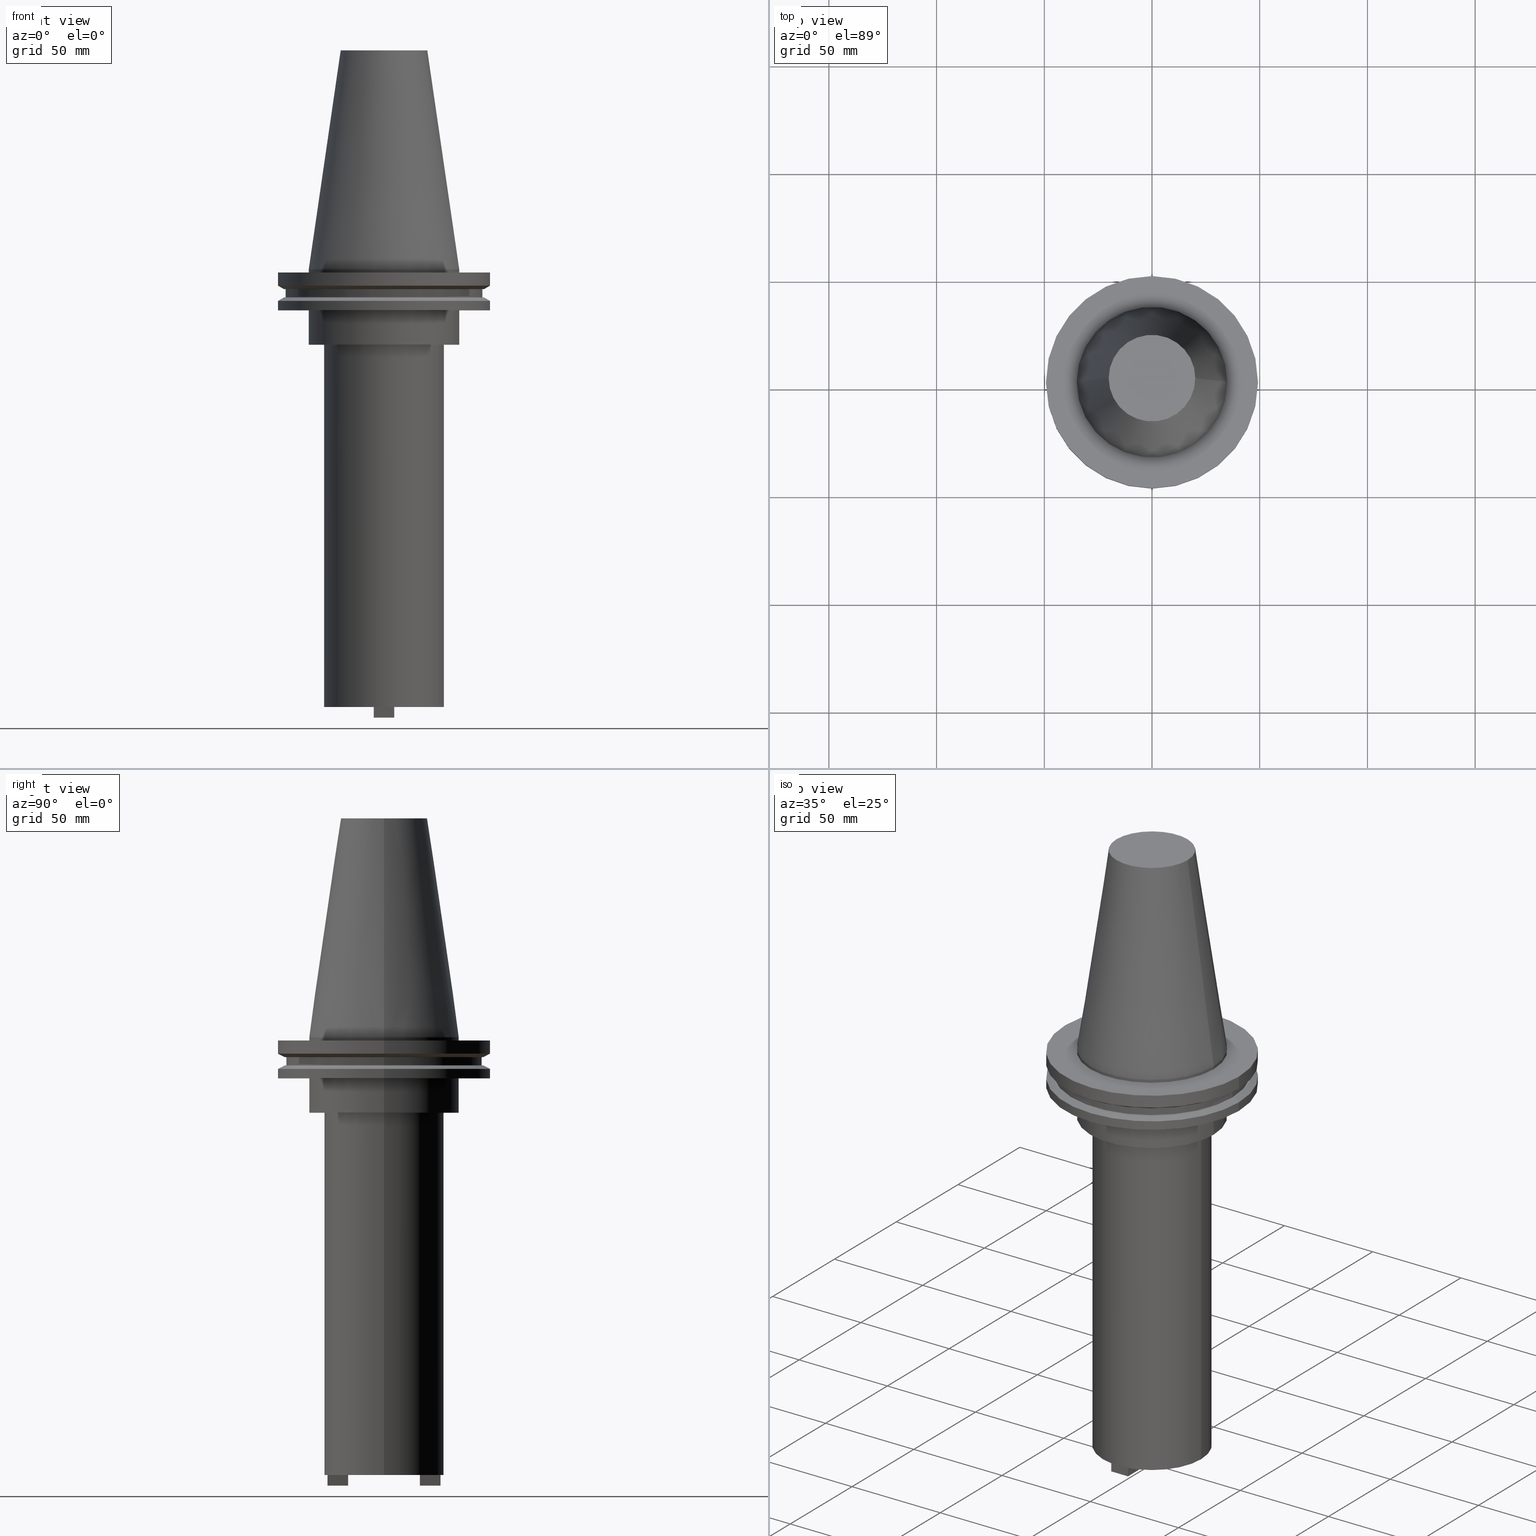
[diagram: canonical four-view strip — front | top / right | iso, engineering-drawing reading convention]
A machine part, canonical four-view strip (front | top / right | iso — engineering-drawing reading convention). The complete STEP part file that produces these views, byte-faithful:
ISO-10303-21;
HEADER;
FILE_DESCRIPTION (( 'STEP AP203' ),
    '1' );
FILE_NAME ('BCV50-SMC1_000-8.stp',
    '2022-03-03T19:54:37',
    ( '' ),
    ( '' ),
    'SwSTEP 2.0',
    'SolidWorks 2021',
    '' );
FILE_SCHEMA (( 'CONFIG_CONTROL_DESIGN' ));
ENDSEC;

DATA;
#1 = CIRCLE ( 'NONE', #856, 34.92499999999999716 ) ;
#2 = LINE ( 'NONE', #570, #325 ) ;
#3 = CARTESIAN_POINT ( 'NONE',  ( -27.80030000000000001, 3.404554841033616429E-15, -203.1999999999999886 ) ) ;
#4 = ORIENTED_EDGE ( 'NONE', *, *, #984, .T. ) ;
#5 = FACE_BOUND ( 'NONE', #557, .T. ) ;
#6 = ADVANCED_FACE ( 'NONE', ( #1049 ), #706, .F. ) ;
#7 = CARTESIAN_POINT ( 'NONE',  ( -34.92499999999999005, 0.000000000000000000, 0.000000000000000000 ) ) ;
#8 = VECTOR ( 'NONE', #800, 1000.000000000000000 ) ;
#9 = CARTESIAN_POINT ( 'NONE',  ( 0.000000000000000000, 0.000000000000000000, 0.000000000000000000 ) ) ;
#10 = ORIENTED_EDGE ( 'NONE', *, *, #368, .T. ) ;
#11 = DIRECTION ( 'NONE',  ( 1.000000000000000000, 0.000000000000000000, 0.000000000000000000 ) ) ;
#12 = EDGE_CURVE ( 'NONE', #749, #692, #894, .T. ) ;
#13 = CARTESIAN_POINT ( 'NONE',  ( 4.762499999999986855, 16.68250000000001876, -208.0999999999999659 ) ) ;
#14 = CIRCLE ( 'NONE', #117, 49.21499999999998920 ) ;
#15 = ORIENTED_EDGE ( 'NONE', *, *, #979, .T. ) ;
#16 = CONICAL_SURFACE ( 'NONE', #291, 46.43919780457007818, 1.047197551196575205 ) ;
#17 = CIRCLE ( 'NONE', #563, 49.21500000000000341 ) ;
#18 = DATE_AND_TIME ( #684, #157 ) ;
#19 = EDGE_CURVE ( 'NONE', #466, #787, #958, .T. ) ;
#20 = LINE ( 'NONE', #423, #410 ) ;
#21 = ADVANCED_FACE ( 'NONE', ( #289 ), #638, .F. ) ;
#22 = ORIENTED_EDGE ( 'NONE', *, *, #368, .F. ) ;
#23 = PERSON_AND_ORGANIZATION_ROLE ( 'creator' ) ;
#24 = DIRECTION ( 'NONE',  ( 1.000000000000000000, 0.000000000000000000, 0.000000000000000000 ) ) ;
#25 = AXIS2_PLACEMENT_3D ( 'NONE', #679, #860, #1012 ) ;
#26 = ORIENTED_EDGE ( 'NONE', *, *, #418, .F. ) ;
#27 = ORIENTED_EDGE ( 'NONE', *, *, #67, .T. ) ;
#28 = DIRECTION ( 'NONE',  ( 0.000000000000000000, -0.000000000000000000, 1.000000000000000000 ) ) ;
#29 = CYLINDRICAL_SURFACE ( 'NONE', #25, 34.92499999999999716 ) ;
#30 = ORIENTED_EDGE ( 'NONE', *, *, #281, .F. ) ;
#31 = PERSON_AND_ORGANIZATION_ROLE ( 'design_owner' ) ;
#32 = CIRCLE ( 'NONE', #797, 34.92499999999999005 ) ;
#33 = ADVANCED_FACE ( 'NONE', ( #296 ), #465, .T. ) ;
#34 = DIRECTION ( 'NONE',  ( -1.000000000000000000, 3.642463991552348493E-16, 0.000000000000000000 ) ) ;
#35 = DIRECTION ( 'NONE',  ( 9.106159978880878627E-17, 1.000000000000000000, 0.000000000000000000 ) ) ;
#36 = ORIENTED_EDGE ( 'NONE', *, *, #337, .F. ) ;
#37 = PLANE ( 'NONE',  #725 ) ;
#38 = CARTESIAN_POINT ( 'NONE',  ( 34.92499999999999005, 4.277078946022130098E-15, 0.000000000000000000 ) ) ;
#39 = ORIENTED_EDGE ( 'NONE', *, *, #373, .F. ) ;
#40 = ORIENTED_EDGE ( 'NONE', *, *, #212, .F. ) ;
#41 = CARTESIAN_POINT ( 'NONE',  ( 27.80030000000000001, 0.000000000000000000, -35.04999999999999716 ) ) ;
#42 = CARTESIAN_POINT ( 'NONE',  ( 0.000000000000000000, 0.000000000000000000, -35.04999999999999716 ) ) ;
#43 = ORIENTED_EDGE ( 'NONE', *, *, #854, .F. ) ;
#44 = VERTEX_POINT ( 'NONE', #1060 ) ;
#45 = CIRCLE ( 'NONE', #343, 46.43919780457007818 ) ;
#46 = CARTESIAN_POINT ( 'NONE',  ( -34.92499999999999716, 4.277078946022130887E-15, 101.5999999999999943 ) ) ;
#47 = PLANE ( 'NONE',  #806 ) ;
#48 = DIRECTION ( 'NONE',  ( -3.642463991552351451E-16, -1.000000000000000000, 0.000000000000000000 ) ) ;
#49 = VERTEX_POINT ( 'NONE', #481 ) ;
#50 = DIRECTION ( 'NONE',  ( -0.000000000000000000, -0.000000000000000000, 1.000000000000000000 ) ) ;
#51 = PLANE ( 'NONE',  #872 ) ;
#52 = DIRECTION ( 'NONE',  ( -0.8660254037844169472, 0.000000000000000000, -0.5000000000000375255 ) ) ;
#53 = EDGE_CURVE ( 'NONE', #749, #531, #545, .T. ) ;
#54 = VERTEX_POINT ( 'NONE', #889 ) ;
#55 = FACE_BOUND ( 'NONE', #863, .T. ) ;
#56 = DIRECTION ( 'NONE',  ( -1.000000000000000000, 0.000000000000000000, 0.000000000000000000 ) ) ;
#57 = EDGE_LOOP ( 'NONE', ( #630, #848, #97, #231 ) ) ;
#58 = EDGE_LOOP ( 'NONE', ( #429, #633, #184, #717 ) ) ;
#59 = CARTESIAN_POINT ( 'NONE',  ( -4.762500000000018829, 16.68250000000002231, -203.1999999999999886 ) ) ;
#60 = AXIS2_PLACEMENT_3D ( 'NONE', #427, #693, #208 ) ;
#61 = CC_DESIGN_PERSON_AND_ORGANIZATION_ASSIGNMENT ( #191, #102, ( #923 ) ) ;
#62 = DIRECTION ( 'NONE',  ( -0.000000000000000000, -0.000000000000000000, 1.000000000000000000 ) ) ;
#63 = DIRECTION ( 'NONE',  ( -0.000000000000000000, -0.000000000000000000, 1.000000000000000000 ) ) ;
#64 = EDGE_LOOP ( 'NONE', ( #810, #304, #40, #297 ) ) ;
#65 = LINE ( 'NONE', #883, #921 ) ;
#66 = VECTOR ( 'NONE', #952, 1000.000000000000000 ) ;
#67 = EDGE_CURVE ( 'NONE', #660, #1074, #477, .T. ) ;
#68 = PRODUCT_RELATED_PRODUCT_CATEGORY ( 'detail', '', ( #918 ) ) ;
#69 = CARTESIAN_POINT ( 'NONE',  ( 0.000000000000000000, 0.000000000000000000, -35.04999999999999716 ) ) ;
#70 = CARTESIAN_POINT ( 'NONE',  ( -4.762500000000017053, -26.20750000000000668, -208.0999999999999659 ) ) ;
#71 = ORIENTED_EDGE ( 'NONE', *, *, #169, .T. ) ;
#72 = CARTESIAN_POINT ( 'NONE',  ( 0.000000000000000000, 0.000000000000000000, -19.04999999999999716 ) ) ;
#73 = CIRCLE ( 'NONE', #375, 34.92499999999999716 ) ;
#74 = FACE_OUTER_BOUND ( 'NONE', #1008, .T. ) ;
#75 = EDGE_CURVE ( 'NONE', #986, #242, #888, .T. ) ;
#76 = CARTESIAN_POINT ( 'NONE',  ( 0.000000000000000000, 0.000000000000000000, -14.65761014474876944 ) ) ;
#77 = EDGE_LOOP ( 'NONE', ( #267, #680, #733, #655 ) ) ;
#78 =( LENGTH_UNIT ( ) NAMED_UNIT ( * ) SI_UNIT ( .MILLI., .METRE. ) );
#79 = DIRECTION ( 'NONE',  ( -1.000000000000000000, 0.000000000000000000, 0.000000000000000000 ) ) ;
#80 = APPROVAL_PERSON_ORGANIZATION ( #539, #1019, #444 ) ;
#81 = CIRCLE ( 'NONE', #158, 5.754999999999994564 ) ;
#82 = DIRECTION ( 'NONE',  ( -1.000000000000000000, 0.000000000000000000, 0.000000000000000000 ) ) ;
#83 = ADVANCED_FACE ( 'NONE', ( #123 ), #1073, .T. ) ;
#84 = ORIENTED_EDGE ( 'NONE', *, *, #386, .T. ) ;
#85 = FACE_OUTER_BOUND ( 'NONE', #271, .T. ) ;
#86 = DIRECTION ( 'NONE',  ( 0.000000000000000000, 0.000000000000000000, -1.000000000000000000 ) ) ;
#87 = SHAPE_DEFINITION_REPRESENTATION ( #930, #796 ) ;
#88 = FACE_OUTER_BOUND ( 'NONE', #398, .T. ) ;
#89 = ORIENTED_EDGE ( 'NONE', *, *, #592, .F. ) ;
#90 = CARTESIAN_POINT ( 'NONE',  ( 0.000000000000000000, 45.64500000000000313, -13.05499999999999794 ) ) ;
#91 = ADVANCED_FACE ( 'NONE', ( #417 ), #153, .T. ) ;
#92 = FACE_OUTER_BOUND ( 'NONE', #702, .T. ) ;
#93 = CONICAL_SURFACE ( 'NONE', #1016, 49.21499999999998920, 1.047197551196554333 ) ;
#94 = DIRECTION ( 'NONE',  ( -0.000000000000000000, -0.000000000000000000, 1.000000000000000000 ) ) ;
#95 = ORIENTED_EDGE ( 'NONE', *, *, #587, .F. ) ;
#96 = CYLINDRICAL_SURFACE ( 'NONE', #306, 49.21499999999999631 ) ;
#97 = ORIENTED_EDGE ( 'NONE', *, *, #605, .T. ) ;
#98 = AXIS2_PLACEMENT_3D ( 'NONE', #534, #784, #846 ) ;
#99 = DIRECTION ( 'NONE',  ( 1.000000000000000000, 0.000000000000000000, 0.000000000000000000 ) ) ;
#100 = APPROVAL_PERSON_ORGANIZATION ( #195, #802, #496 ) ;
#101 = ORIENTED_EDGE ( 'NONE', *, *, #605, .F. ) ;
#102 = PERSON_AND_ORGANIZATION_ROLE ( 'creator' ) ;
#103 = AXIS2_PLACEMENT_3D ( 'NONE', #149, #284, #953 ) ;
#104 = ORIENTED_EDGE ( 'NONE', *, *, #947, .T. ) ;
#105 = DIRECTION ( 'NONE',  ( -0.000000000000000000, -0.000000000000000000, 1.000000000000000000 ) ) ;
#106 = ORIENTED_EDGE ( 'NONE', *, *, #203, .T. ) ;
#107 = DATE_TIME_ROLE ( 'classification_date' ) ;
#108 = ORIENTED_EDGE ( 'NONE', *, *, #885, .F. ) ;
#109 = EDGE_CURVE ( 'NONE', #190, #448, #915, .T. ) ;
#110 = DIRECTION ( 'NONE',  ( 1.000000000000000000, 0.000000000000000000, 0.000000000000000000 ) ) ;
#111 = EDGE_LOOP ( 'NONE', ( #964, #322, #246, #713 ) ) ;
#112 = ORIENTED_EDGE ( 'NONE', *, *, #126, .T. ) ;
#113 = FACE_BOUND ( 'NONE', #1020, .T. ) ;
#114 = DIRECTION ( 'NONE',  ( -0.000000000000000000, -0.000000000000000000, 1.000000000000000000 ) ) ;
#115 = EDGE_CURVE ( 'NONE', #445, #502, #17, .T. ) ;
#116 = ORIENTED_EDGE ( 'NONE', *, *, #523, .T. ) ;
#117 = AXIS2_PLACEMENT_3D ( 'NONE', #485, #646, #816 ) ;
#118 = CC_DESIGN_APPROVAL ( #700, ( #923 ) ) ;
#119 = AXIS2_PLACEMENT_3D ( 'NONE', #166, #245, #497 ) ;
#120 = DIRECTION ( 'NONE',  ( -0.000000000000000000, -0.000000000000000000, 1.000000000000000000 ) ) ;
#121 = AXIS2_PLACEMENT_3D ( 'NONE', #480, #903, #411 ) ;
#122 = LINE ( 'NONE', #875, #1050 ) ;
#123 = FACE_OUTER_BOUND ( 'NONE', #305, .T. ) ;
#124 = ORIENTED_EDGE ( 'NONE', *, *, #1061, .F. ) ;
#125 = LINE ( 'NONE', #255, #596 ) ;
#126 = EDGE_CURVE ( 'NONE', #351, #804, #81, .T. ) ;
#127 = DIRECTION ( 'NONE',  ( 0.000000000000000000, 0.000000000000000000, -1.000000000000000000 ) ) ;
#128 = DIRECTION ( 'NONE',  ( 1.000000000000000000, -3.642463991552351451E-16, 0.000000000000000000 ) ) ;
#129 = AXIS2_PLACEMENT_3D ( 'NONE', #602, #270, #110 ) ;
#130 = UNCERTAINTY_MEASURE_WITH_UNIT (LENGTH_MEASURE( 1.000000000000000082E-05 ), #78, 'distance_accuracy_value', 'NONE');
#131 = ORIENTED_EDGE ( 'NONE', *, *, #280, .T. ) ;
#132 = CARTESIAN_POINT ( 'NONE',  ( -4.762500000000017053, -26.20750000000000668, -208.0999999999999659 ) ) ;
#133 = EDGE_CURVE ( 'NONE', #173, #196, #526, .T. ) ;
#134 = CC_DESIGN_PERSON_AND_ORGANIZATION_ASSIGNMENT ( #604, #23, ( #1058 ) ) ;
#135 = CARTESIAN_POINT ( 'NONE',  ( -4.762500000000017941, 26.20750000000002089, -208.0999999999999659 ) ) ;
#136 = ORIENTED_EDGE ( 'NONE', *, *, #554, .F. ) ;
#137 = ORIENTED_EDGE ( 'NONE', *, *, #148, .T. ) ;
#138 = AXIS2_PLACEMENT_3D ( 'NONE', #218, #1056, #155 ) ;
#139 = LINE ( 'NONE', #651, #694 ) ;
#140 = SECURITY_CLASSIFICATION ( '', '', #268 ) ;
#141 = DIRECTION ( 'NONE',  ( 1.000000000000000000, 0.000000000000000000, 0.000000000000000000 ) ) ;
#142 = EDGE_CURVE ( 'NONE', #196, #173, #308, .T. ) ;
#143 = ORIENTED_EDGE ( 'NONE', *, *, #169, .F. ) ;
#144 = CIRCLE ( 'NONE', #121, 46.43919780457007818 ) ;
#145 = ORIENTED_EDGE ( 'NONE', *, *, #666, .F. ) ;
#146 = LINE ( 'NONE', #302, #222 ) ;
#147 = DIRECTION ( 'NONE',  ( -0.000000000000000000, -0.000000000000000000, 1.000000000000000000 ) ) ;
#148 = EDGE_CURVE ( 'NONE', #502, #445, #941, .T. ) ;
#149 = CARTESIAN_POINT ( 'NONE',  ( 0.000000000000000000, 0.000000000000000000, 101.5999999999999943 ) ) ;
#150 = EDGE_LOOP ( 'NONE', ( #1001, #594, #95, #493 ) ) ;
#151 = CARTESIAN_POINT ( 'NONE',  ( -5.754999999999994564, 7.047842329093010853E-16, -35.04999999999999716 ) ) ;
#152 = FACE_OUTER_BOUND ( 'NONE', #111, .T. ) ;
#153 = CYLINDRICAL_SURFACE ( 'NONE', #780, 49.21499999999998920 ) ;
#154 = VERTEX_POINT ( 'NONE', #825 ) ;
#155 = DIRECTION ( 'NONE',  ( 0.000000000000000000, -0.000000000000000000, 1.000000000000000000 ) ) ;
#156 = CIRCLE ( 'NONE', #432, 5.755000000000006111 ) ;
#157 = LOCAL_TIME ( 13, 54, 37.00000000000000000, #188 ) ;
#158 = AXIS2_PLACEMENT_3D ( 'NONE', #980, #743, #899 ) ;
#159 = LINE ( 'NONE', #401, #380 ) ;
#160 = VECTOR ( 'NONE', #721, 1000.000000000000000 ) ;
#161 = CARTESIAN_POINT ( 'NONE',  ( -45.64500000000000313, 5.589900314708094957E-15, -9.204999999999991189 ) ) ;
#162 = EDGE_LOOP ( 'NONE', ( #335, #116 ) ) ;
#163 = CARTESIAN_POINT ( 'NONE',  ( 46.43919780457007818, 0.000000000000000000, -9.204999999999991189 ) ) ;
#164 = EDGE_CURVE ( 'NONE', #945, #804, #1078, .T. ) ;
#165 = DIRECTION ( 'NONE',  ( -0.000000000000000000, -0.000000000000000000, 1.000000000000000000 ) ) ;
#166 = CARTESIAN_POINT ( 'NONE',  ( 0.000000000000000000, 0.000000000000000000, -14.65761014474876944 ) ) ;
#167 = ORIENTED_EDGE ( 'NONE', *, *, #148, .F. ) ;
#168 = DIRECTION ( 'NONE',  ( 1.000000000000000000, 0.000000000000000000, 0.000000000000000000 ) ) ;
#169 = EDGE_CURVE ( 'NONE', #697, #154, #1066, .T. ) ;
#170 = CARTESIAN_POINT ( 'NONE',  ( 0.000000000000000000, 0.000000000000000000, -19.04999999999999716 ) ) ;
#171 = EDGE_CURVE ( 'NONE', #1074, #787, #1085, .T. ) ;
#172 = DIRECTION ( 'NONE',  ( 1.000000000000000000, 0.000000000000000000, 0.000000000000000000 ) ) ;
#173 = VERTEX_POINT ( 'NONE', #329 ) ;
#174 = DIRECTION ( 'NONE',  ( 1.000000000000000000, -1.456985596620939003E-15, 0.000000000000000000 ) ) ;
#175 = CARTESIAN_POINT ( 'NONE',  ( 4.762499999999986855, 16.68250000000001876, -208.0999999999999659 ) ) ;
#176 = VECTOR ( 'NONE', #902, 1000.000000000000000 ) ;
#177 = CARTESIAN_POINT ( 'NONE',  ( -4.762500000000017053, -26.20750000000000668, -208.0999999999999659 ) ) ;
#178 = CLOSED_SHELL ( 'NONE', ( #710, #331, #785, #1003, #1057, #33, #691, #91, #320, #1034, #767, #672, #598, #751, #83, #395, #315, #248, #1087, #1048, #935, #1028, #536, #269, #525, #264, #355, #250, #392, #21, #6, #313, #895, #843, #1011, #256, #808, #358 ) ) ;
#179 = VERTEX_POINT ( 'NONE', #1086 ) ;
#180 = DIRECTION ( 'NONE',  ( -0.000000000000000000, -0.000000000000000000, 1.000000000000000000 ) ) ;
#181 = AXIS2_PLACEMENT_3D ( 'NONE', #219, #1077, #893 ) ;
#182 = DIRECTION ( 'NONE',  ( 1.000000000000000000, 0.000000000000000000, 0.000000000000000000 ) ) ;
#183 = DIRECTION ( 'NONE',  ( -1.000000000000000000, 1.821231995776175725E-16, 0.000000000000000000 ) ) ;
#184 = ORIENTED_EDGE ( 'NONE', *, *, #828, .F. ) ;
#185 = DIRECTION ( 'NONE',  ( -1.000000000000000000, 0.000000000000000000, 0.000000000000000000 ) ) ;
#186 = CARTESIAN_POINT ( 'NONE',  ( 0.000000000000000000, 0.000000000000000000, -35.04999999999999716 ) ) ;
#187 = ORIENTED_EDGE ( 'NONE', *, *, #142, .T. ) ;
#188 = COORDINATED_UNIVERSAL_TIME_OFFSET ( 6, 0, .BEHIND. ) ;
#189 = CYLINDRICAL_SURFACE ( 'NONE', #482, 5.754999999999994564 ) ;
#190 = VERTEX_POINT ( 'NONE', #177 ) ;
#191 = PERSON_AND_ORGANIZATION ( #654, #940 ) ;
#192 = EDGE_CURVE ( 'NONE', #44, #217, #402, .T. ) ;
#193 = CYLINDRICAL_SURFACE ( 'NONE', #129, 27.80030000000000001 ) ;
#194 = ORIENTED_EDGE ( 'NONE', *, *, #19, .T. ) ;
#195 = PERSON_AND_ORGANIZATION ( #654, #940 ) ;
#196 = VERTEX_POINT ( 'NONE', #3 ) ;
#197 = PLANE ( 'NONE',  #939 ) ;
#198 = DIRECTION ( 'NONE',  ( 1.000000000000000000, 0.000000000000000000, 0.000000000000000000 ) ) ;
#199 = EDGE_CURVE ( 'NONE', #639, #502, #492, .T. ) ;
#200 = ORIENTED_EDGE ( 'NONE', *, *, #900, .F. ) ;
#201 = APPROVAL_STATUS ( 'not_yet_approved' ) ;
#202 = CARTESIAN_POINT ( 'NONE',  ( -4.762500000000017053, -26.20750000000000668, -208.0999999999999659 ) ) ;
#203 = EDGE_CURVE ( 'NONE', #449, #54, #732, .T. ) ;
#204 = CARTESIAN_POINT ( 'NONE',  ( -4.762500000000019718, -16.68249999999999389, -208.0999999999999659 ) ) ;
#205 = CARTESIAN_POINT ( 'NONE',  ( 0.000000000000000000, 0.000000000000000000, -9.204999999999991189 ) ) ;
#206 = AXIS2_PLACEMENT_3D ( 'NONE', #132, #558, #1070 ) ;
#207 = LOCAL_TIME ( 13, 54, 37.00000000000000000, #278 ) ;
#208 = DIRECTION ( 'NONE',  ( 1.000000000000000000, 0.000000000000000000, 0.000000000000000000 ) ) ;
#209 = CARTESIAN_POINT ( 'NONE',  ( 34.92499999999999716, 0.000000000000000000, -35.04999999999999716 ) ) ;
#210 = VECTOR ( 'NONE', #458, 1000.000000000000000 ) ;
#211 = ORIENTED_EDGE ( 'NONE', *, *, #199, .T. ) ;
#212 = EDGE_CURVE ( 'NONE', #787, #1074, #1076, .T. ) ;
#213 = VERTEX_POINT ( 'NONE', #905 ) ;
#214 = CARTESIAN_POINT ( 'NONE',  ( -4.762500000000017941, 26.20750000000002089, -208.0999999999999659 ) ) ;
#215 = LINE ( 'NONE', #385, #66 ) ;
#216 = ORIENTED_EDGE ( 'NONE', *, *, #979, .F. ) ;
#217 = VERTEX_POINT ( 'NONE', #990 ) ;
#218 = CARTESIAN_POINT ( 'NONE',  ( 4.762499999999988631, -26.20750000000000668, -208.0999999999999659 ) ) ;
#219 = CARTESIAN_POINT ( 'NONE',  ( 0.000000000000000000, 0.000000000000000000, 0.000000000000000000 ) ) ;
#220 = ORIENTED_EDGE ( 'NONE', *, *, #523, .F. ) ;
#221 = ORIENTED_EDGE ( 'NONE', *, *, #109, .F. ) ;
#222 = VECTOR ( 'NONE', #475, 1000.000000000000000 ) ;
#223 = FACE_OUTER_BOUND ( 'NONE', #685, .T. ) ;
#224 = APPROVAL_PERSON_ORGANIZATION ( #770, #700, #1018 ) ;
#225 = CARTESIAN_POINT ( 'NONE',  ( 0.000000000000000000, 0.000000000000000000, 0.000000000000000000 ) ) ;
#226 = VERTEX_POINT ( 'NONE', #241 ) ;
#227 = EDGE_LOOP ( 'NONE', ( #850, #221, #907, #1013 ) ) ;
#228 = DIRECTION ( 'NONE',  ( -1.000000000000000000, 0.000000000000000000, 0.000000000000000000 ) ) ;
#229 = CARTESIAN_POINT ( 'NONE',  ( -46.43919780457007818, 5.857130358318727293E-15, -9.204999999999991189 ) ) ;
#230 = CARTESIAN_POINT ( 'NONE',  ( -46.43919780457007818, 5.687161494633754392E-15, -9.204999999999991189 ) ) ;
#231 = ORIENTED_EDGE ( 'NONE', *, *, #647, .T. ) ;
#232 = PLANE ( 'NONE',  #853 ) ;
#233 = AXIS2_PLACEMENT_3D ( 'NONE', #9, #851, #99 ) ;
#234 = LINE ( 'NONE', #576, #1029 ) ;
#235 = DIRECTION ( 'NONE',  ( 1.000000000000000000, 0.000000000000000000, 0.000000000000000000 ) ) ;
#236 = VERTEX_POINT ( 'NONE', #832 ) ;
#237 = DIRECTION ( 'NONE',  ( 1.000000000000000000, 0.000000000000000000, 0.000000000000000000 ) ) ;
#238 = VECTOR ( 'NONE', #553, 1000.000000000000000 ) ;
#239 = VECTOR ( 'NONE', #1002, 1000.000000000000000 ) ;
#240 = CARTESIAN_POINT ( 'NONE',  ( 4.762499999999981526, 26.20750000000001734, -203.1999999999999886 ) ) ;
#241 = CARTESIAN_POINT ( 'NONE',  ( -4.762500000000019718, -16.68249999999999034, -203.1999999999999886 ) ) ;
#242 = VERTEX_POINT ( 'NONE', #161 ) ;
#243 = LINE ( 'NONE', #516, #778 ) ;
#244 = LINE ( 'NONE', #829, #332 ) ;
#245 = DIRECTION ( 'NONE',  ( -0.000000000000000000, -0.000000000000000000, 1.000000000000000000 ) ) ;
#246 = ORIENTED_EDGE ( 'NONE', *, *, #12, .T. ) ;
#247 = DIRECTION ( 'NONE',  ( -1.000000000000000000, 0.000000000000000000, -0.000000000000000000 ) ) ;
#248 = ADVANCED_FACE ( 'NONE', ( #397 ), #93, .T. ) ;
#249 = AXIS2_PLACEMENT_3D ( 'NONE', #642, #463, #555 ) ;
#250 = ADVANCED_FACE ( 'NONE', ( #1068 ), #649, .F. ) ;
#251 = CARTESIAN_POINT ( 'NONE',  ( 4.762499999999986855, 16.68250000000001876, -208.0999999999999659 ) ) ;
#252 = DIRECTION ( 'NONE',  ( -0.000000000000000000, -0.000000000000000000, 1.000000000000000000 ) ) ;
#253 = EDGE_LOOP ( 'NONE', ( #634, #43, #101, #131 ) ) ;
#254 = DIRECTION ( 'NONE',  ( -0.000000000000000000, -0.000000000000000000, 1.000000000000000000 ) ) ;
#255 = CARTESIAN_POINT ( 'NONE',  ( 4.762499999999986855, 16.68250000000001876, -203.1999999999999886 ) ) ;
#256 = ADVANCED_FACE ( 'NONE', ( #1021 ), #696, .F. ) ;
#257 = FACE_OUTER_BOUND ( 'NONE', #579, .T. ) ;
#258 = CC_DESIGN_DATE_AND_TIME_ASSIGNMENT ( #18, #532, ( #1058 ) ) ;
#259 = EDGE_LOOP ( 'NONE', ( #556, #759 ) ) ;
#260 = DIRECTION ( 'NONE',  ( -0.000000000000000000, -0.000000000000000000, 1.000000000000000000 ) ) ;
#261 = COORDINATED_UNIVERSAL_TIME_OFFSET ( 6, 0, .BEHIND. ) ;
#262 = EDGE_CURVE ( 'NONE', #179, #712, #441, .T. ) ;
#263 = DIRECTION ( 'NONE',  ( -1.000000000000000000, 0.000000000000000000, -0.000000000000000000 ) ) ;
#264 = ADVANCED_FACE ( 'NONE', ( #257 ), #942, .T. ) ;
#265 = ORIENTED_EDGE ( 'NONE', *, *, #774, .F. ) ;
#266 = DIRECTION ( 'NONE',  ( -1.821231995776175725E-16, -1.000000000000000000, 0.000000000000000000 ) ) ;
#267 = ORIENTED_EDGE ( 'NONE', *, *, #742, .T. ) ;
#268 = SECURITY_CLASSIFICATION_LEVEL ( 'unclassified' ) ;
#269 = ADVANCED_FACE ( 'NONE', ( #599, #674 ), #758, .F. ) ;
#270 = DIRECTION ( 'NONE',  ( -0.000000000000000000, -0.000000000000000000, 1.000000000000000000 ) ) ;
#271 = EDGE_LOOP ( 'NONE', ( #670, #211, #552, #330 ) ) ;
#272 =( NAMED_UNIT ( * ) SI_UNIT ( $, .STERADIAN. ) SOLID_ANGLE_UNIT ( ) );
#273 = ORIENTED_EDGE ( 'NONE', *, *, #900, .T. ) ;
#274 = DIRECTION ( 'NONE',  ( 1.000000000000000000, 0.000000000000000000, 0.000000000000000000 ) ) ;
#275 = EDGE_CURVE ( 'NONE', #794, #922, #436, .T. ) ;
#276 = CARTESIAN_POINT ( 'NONE',  ( 5.754999999999994564, 0.000000000000000000, -35.04999999999999716 ) ) ;
#277 = ORIENTED_EDGE ( 'NONE', *, *, #641, .T. ) ;
#278 = COORDINATED_UNIVERSAL_TIME_OFFSET ( 6, 0, .BEHIND. ) ;
#279 = CYLINDRICAL_SURFACE ( 'NONE', #470, 34.92499999999999005 ) ;
#280 = EDGE_CURVE ( 'NONE', #937, #213, #20, .T. ) ;
#281 = EDGE_CURVE ( 'NONE', #901, #449, #73, .T. ) ;
#282 = DIRECTION ( 'NONE',  ( 1.000000000000000000, 0.000000000000000000, 0.000000000000000000 ) ) ;
#283 = VECTOR ( 'NONE', #469, 1000.000000000000114 ) ;
#284 = DIRECTION ( 'NONE',  ( -0.000000000000000000, -0.000000000000000000, 1.000000000000000000 ) ) ;
#285 = ORIENTED_EDGE ( 'NONE', *, *, #641, .F. ) ;
#286 = DIRECTION ( 'NONE',  ( -1.000000000000000000, 0.000000000000000000, -0.000000000000000000 ) ) ;
#287 = DIRECTION ( 'NONE',  ( 1.000000000000000000, -9.106159978880878627E-17, 0.000000000000000000 ) ) ;
#288 = CONICAL_SURFACE ( 'NONE', #818, 34.92499999999999005, 0.1448138465474119452 ) ;
#289 = FACE_OUTER_BOUND ( 'NONE', #1031, .T. ) ;
#290 = CIRCLE ( 'NONE', #989, 46.43919780457007818 ) ;
#291 = AXIS2_PLACEMENT_3D ( 'NONE', #913, #601, #734 ) ;
#292 = AXIS2_PLACEMENT_3D ( 'NONE', #737, #748, #172 ) ;
#293 = ORIENTED_EDGE ( 'NONE', *, *, #892, .F. ) ;
#294 = CARTESIAN_POINT ( 'NONE',  ( -4.762500000000018829, 16.68250000000002231, -208.0999999999999659 ) ) ;
#295 = DIRECTION ( 'NONE',  ( 1.000000000000000000, -3.642463991552351451E-16, -0.000000000000000000 ) ) ;
#296 = FACE_OUTER_BOUND ( 'NONE', #611, .T. ) ;
#297 = ORIENTED_EDGE ( 'NONE', *, *, #19, .F. ) ;
#298 = LINE ( 'NONE', #565, #176 ) ;
#299 = DIRECTION ( 'NONE',  ( -1.821231995776175725E-16, -1.000000000000000000, -0.000000000000000000 ) ) ;
#300 = ORIENTED_EDGE ( 'NONE', *, *, #203, .F. ) ;
#301 = ORIENTED_EDGE ( 'NONE', *, *, #262, .T. ) ;
#302 = CARTESIAN_POINT ( 'NONE',  ( 27.80030000000000001, 0.000000000000000000, 0.000000000000000000 ) ) ;
#303 = CARTESIAN_POINT ( 'NONE',  ( -45.64500000000000313, 5.589900314708094957E-15, -13.05499999999999794 ) ) ;
#304 = ORIENTED_EDGE ( 'NONE', *, *, #405, .T. ) ;
#305 = EDGE_LOOP ( 'NONE', ( #293, #826, #106, #220 ) ) ;
#306 = AXIS2_PLACEMENT_3D ( 'NONE', #1080, #180, #908 ) ;
#307 = DIRECTION ( 'NONE',  ( -2.731847993664259274E-16, 1.000000000000000000, 0.000000000000000000 ) ) ;
#308 = CIRCLE ( 'NONE', #801, 27.80030000000000001 ) ;
#309 = FACE_OUTER_BOUND ( 'NONE', #738, .T. ) ;
#310 = DIRECTION ( 'NONE',  ( -0.000000000000000000, -0.000000000000000000, 1.000000000000000000 ) ) ;
#311 = ORIENTED_EDGE ( 'NONE', *, *, #688, .F. ) ;
#312 = DIRECTION ( 'NONE',  ( -0.000000000000000000, -0.000000000000000000, 1.000000000000000000 ) ) ;
#313 = ADVANCED_FACE ( 'NONE', ( #514 ), #610, .F. ) ;
#314 = CARTESIAN_POINT ( 'NONE',  ( 0.000000000000000000, 0.000000000000000000, -35.04999999999999716 ) ) ;
#315 = ADVANCED_FACE ( 'NONE', ( #88 ), #350, .T. ) ;
#316 = CARTESIAN_POINT ( 'NONE',  ( 34.92499999999999716, 0.000000000000000000, 101.5999999999999943 ) ) ;
#317 = ORIENTED_EDGE ( 'NONE', *, *, #462, .F. ) ;
#318 = CARTESIAN_POINT ( 'NONE',  ( 0.000000000000000000, 0.000000000000000000, -35.04999999999999716 ) ) ;
#319 = CARTESIAN_POINT ( 'NONE',  ( 4.762499999999988631, -26.20750000000000668, -208.0999999999999659 ) ) ;
#320 = ADVANCED_FACE ( 'NONE', ( #428 ), #29, .T. ) ;
#321 = DIRECTION ( 'NONE',  ( 1.000000000000000000, 0.000000000000000000, 0.000000000000000000 ) ) ;
#322 = ORIENTED_EDGE ( 'NONE', *, *, #53, .F. ) ;
#323 = CARTESIAN_POINT ( 'NONE',  ( 46.43919780457007818, 0.000000000000000000, -9.204999999999991189 ) ) ;
#324 = CC_DESIGN_PERSON_AND_ORGANIZATION_ASSIGNMENT ( #862, #31, ( #918 ) ) ;
#325 = VECTOR ( 'NONE', #731, 1000.000000000000000 ) ;
#326 = AXIS2_PLACEMENT_3D ( 'NONE', #90, #993, #247 ) ;
#327 = VECTOR ( 'NONE', #471, 999.9999999999998863 ) ;
#328 = CARTESIAN_POINT ( 'NONE',  ( 0.000000000000000000, 0.000000000000000000, 101.5999999999999943 ) ) ;
#329 = CARTESIAN_POINT ( 'NONE',  ( 27.80030000000000001, 0.000000000000000000, -203.1999999999999886 ) ) ;
#330 = ORIENTED_EDGE ( 'NONE', *, *, #1064, .F. ) ;
#331 = ADVANCED_FACE ( 'NONE', ( #1030 ), #193, .T. ) ;
#332 = VECTOR ( 'NONE', #79, 1000.000000000000000 ) ;
#333 = DIRECTION ( 'NONE',  ( 1.000000000000000000, 0.000000000000000000, 0.000000000000000000 ) ) ;
#334 = DIRECTION ( 'NONE',  ( -0.000000000000000000, -0.000000000000000000, 1.000000000000000000 ) ) ;
#335 = ORIENTED_EDGE ( 'NONE', *, *, #1015, .T. ) ;
#336 = FACE_OUTER_BOUND ( 'NONE', #809, .T. ) ;
#337 = EDGE_CURVE ( 'NONE', #531, #749, #686, .T. ) ;
#338 = AXIS2_PLACEMENT_3D ( 'NONE', #13, #773, #931 ) ;
#339 = DIRECTION ( 'NONE',  ( -0.000000000000000000, -0.000000000000000000, 1.000000000000000000 ) ) ;
#340 = DIRECTION ( 'NONE',  ( 6.374311985216615162E-16, -1.000000000000000000, 0.000000000000000000 ) ) ;
#341 = EDGE_LOOP ( 'NONE', ( #1026, #949, #277, #200 ) ) ;
#342 = DIRECTION ( 'NONE',  ( -0.000000000000000000, -0.000000000000000000, 1.000000000000000000 ) ) ;
#343 = AXIS2_PLACEMENT_3D ( 'NONE', #479, #897, #723 ) ;
#344 = CIRCLE ( 'NONE', #580, 45.64500000000000313 ) ;
#345 = CARTESIAN_POINT ( 'NONE',  ( 0.000000000000000000, 0.000000000000000000, 101.5999999999999801 ) ) ;
#346 = ORIENTED_EDGE ( 'NONE', *, *, #164, .T. ) ;
#347 = APPROVAL_STATUS ( 'not_yet_approved' ) ;
#348 = CIRCLE ( 'NONE', #440, 49.21499999999999631 ) ;
#349 = EDGE_CURVE ( 'NONE', #1051, #639, #637, .T. ) ;
#350 = CYLINDRICAL_SURFACE ( 'NONE', #518, 49.21499999999998920 ) ;
#351 = VERTEX_POINT ( 'NONE', #276 ) ;
#352 = CALENDAR_DATE ( 2022, 3, 3 ) ;
#353 = ORIENTED_EDGE ( 'NONE', *, *, #483, .F. ) ;
#354 = DIRECTION ( 'NONE',  ( 0.000000000000000000, 0.000000000000000000, -1.000000000000000000 ) ) ;
#355 = ADVANCED_FACE ( 'NONE', ( #936 ), #189, .F. ) ;
#356 = ORIENTED_EDGE ( 'NONE', *, *, #192, .T. ) ;
#357 = MECHANICAL_CONTEXT ( 'NONE', #1081, 'mechanical' ) ;
#358 = ADVANCED_FACE ( 'NONE', ( #768 ), #887, .F. ) ;
#359 = EDGE_CURVE ( 'NONE', #712, #794, #807, .T. ) ;
#360 = ORIENTED_EDGE ( 'NONE', *, *, #866, .F. ) ;
#361 = PLANE ( 'NONE',  #98 ) ;
#362 = CONICAL_SURFACE ( 'NONE', #884, 49.21499999999998920, 1.047197551196554333 ) ;
#363 = CARTESIAN_POINT ( 'NONE',  ( 4.762499999999981526, 26.20750000000001734, -208.0999999999999659 ) ) ;
#364 = LOCAL_TIME ( 13, 54, 37.00000000000000000, #619 ) ;
#365 = ORIENTED_EDGE ( 'NONE', *, *, #998, .T. ) ;
#366 = AXIS2_PLACEMENT_3D ( 'NONE', #1054, #644, #1040 ) ;
#367 = DIRECTION ( 'NONE',  ( -0.000000000000000000, -0.000000000000000000, 1.000000000000000000 ) ) ;
#368 = EDGE_CURVE ( 'NONE', #793, #650, #622, .T. ) ;
#369 = CARTESIAN_POINT ( 'NONE',  ( 4.762499999999988631, -26.20750000000000668, -208.0999999999999659 ) ) ;
#370 = ORIENTED_EDGE ( 'NONE', *, *, #507, .F. ) ;
#371 = ORIENTED_EDGE ( 'NONE', *, *, #730, .T. ) ;
#372 = CARTESIAN_POINT ( 'NONE',  ( 4.762499999999981526, 26.20750000000001734, -208.0999999999999659 ) ) ;
#373 = EDGE_CURVE ( 'NONE', #538, #787, #957, .T. ) ;
#374 = DIRECTION ( 'NONE',  ( 1.000000000000000000, 0.000000000000000000, 0.000000000000000000 ) ) ;
#375 = AXIS2_PLACEMENT_3D ( 'NONE', #186, #927, #617 ) ;
#376 = ORIENTED_EDGE ( 'NONE', *, *, #133, .F. ) ;
#377 = ORIENTED_EDGE ( 'NONE', *, *, #75, .F. ) ;
#378 = CARTESIAN_POINT ( 'NONE',  ( 45.64500000000000313, 0.000000000000000000, 101.5999999999999943 ) ) ;
#379 = DIRECTION ( 'NONE',  ( 0.000000000000000000, -0.000000000000000000, 1.000000000000000000 ) ) ;
#380 = VECTOR ( 'NONE', #668, 1000.000000000000000 ) ;
#381 = ORIENTED_EDGE ( 'NONE', *, *, #736, .F. ) ;
#382 = VECTOR ( 'NONE', #310, 1000.000000000000000 ) ;
#383 = ORIENTED_EDGE ( 'NONE', *, *, #667, .T. ) ;
#384 = DIRECTION ( 'NONE',  ( 0.000000000000000000, 0.000000000000000000, -1.000000000000000000 ) ) ;
#385 = CARTESIAN_POINT ( 'NONE',  ( -4.762500000000017941, 26.20750000000002089, -203.1999999999999886 ) ) ;
#386 = EDGE_CURVE ( 'NONE', #1017, #692, #977, .T. ) ;
#387 = DIRECTION ( 'NONE',  ( -0.000000000000000000, -0.000000000000000000, 1.000000000000000000 ) ) ;
#388 = ORIENTED_EDGE ( 'NONE', *, *, #984, .F. ) ;
#389 = CARTESIAN_POINT ( 'NONE',  ( -34.92499999999999716, 4.277078946022130887E-15, -35.04999999999999716 ) ) ;
#390 = DIRECTION ( 'NONE',  ( -0.000000000000000000, -0.000000000000000000, 1.000000000000000000 ) ) ;
#391 = CARTESIAN_POINT ( 'NONE',  ( 49.21499999999998920, 0.000000000000000000, 101.5999999999999943 ) ) ;
#392 = ADVANCED_FACE ( 'NONE', ( #720 ), #51, .F. ) ;
#393 = ORIENTED_EDGE ( 'NONE', *, *, #1064, .T. ) ;
#394 = DIRECTION ( 'NONE',  ( 0.000000000000000000, -0.000000000000000000, 1.000000000000000000 ) ) ;
#395 = ADVANCED_FACE ( 'NONE', ( #781, #623 ), #47, .F. ) ;
#396 = LINE ( 'NONE', #319, #489 ) ;
#397 = FACE_OUTER_BOUND ( 'NONE', #689, .T. ) ;
#398 = EDGE_LOOP ( 'NONE', ( #1088, #820, #194, #603 ) ) ;
#399 = CIRCLE ( 'NONE', #60, 45.64500000000000313 ) ;
#400 = LINE ( 'NONE', #214, #541 ) ;
#401 = CARTESIAN_POINT ( 'NONE',  ( -4.762500000000019718, -16.68249999999999389, -208.0999999999999659 ) ) ;
#402 = LINE ( 'NONE', #593, #1009 ) ;
#403 = ORIENTED_EDGE ( 'NONE', *, *, #621, .F. ) ;
#404 = DIRECTION ( 'NONE',  ( -0.000000000000000000, -0.000000000000000000, 1.000000000000000000 ) ) ;
#405 = EDGE_CURVE ( 'NONE', #236, #1074, #967, .T. ) ;
#406 = DIRECTION ( 'NONE',  ( 0.000000000000000000, 0.000000000000000000, -1.000000000000000000 ) ) ;
#407 = DIRECTION ( 'NONE',  ( 1.000000000000000000, 0.000000000000000000, 0.000000000000000000 ) ) ;
#408 = ORIENTED_EDGE ( 'NONE', *, *, #828, .T. ) ;
#409 = CARTESIAN_POINT ( 'NONE',  ( 0.000000000000000000, 0.000000000000000000, -13.05499999999999794 ) ) ;
#410 = VECTOR ( 'NONE', #753, 1000.000000000000000 ) ;
#411 = DIRECTION ( 'NONE',  ( 1.000000000000000000, 0.000000000000000000, 0.000000000000000000 ) ) ;
#412 = CARTESIAN_POINT ( 'NONE',  ( 0.000000000000000000, 0.000000000000000000, 101.5999999999999943 ) ) ;
#413 = EDGE_LOOP ( 'NONE', ( #376, #943 ) ) ;
#414 = DIRECTION ( 'NONE',  ( 1.000000000000000000, 0.000000000000000000, 0.000000000000000000 ) ) ;
#415 = AXIS2_PLACEMENT_3D ( 'NONE', #1027, #339, #182 ) ;
#416 = DIRECTION ( 'NONE',  ( 0.000000000000000000, 0.000000000000000000, -1.000000000000000000 ) ) ;
#417 = FACE_OUTER_BOUND ( 'NONE', #64, .T. ) ;
#418 = EDGE_CURVE ( 'NONE', #562, #692, #1059, .T. ) ;
#419 = ORIENTED_EDGE ( 'NONE', *, *, #790, .F. ) ;
#420 = CARTESIAN_POINT ( 'NONE',  ( -49.21499999999998920, 6.027099222003697037E-15, -14.65761014474876944 ) ) ;
#421 = CARTESIAN_POINT ( 'NONE',  ( 0.000000000000000000, 20.10819343178871321, 101.5999999999999943 ) ) ;
#422 = DATE_AND_TIME ( #830, #762 ) ;
#423 = CARTESIAN_POINT ( 'NONE',  ( 4.762499999999990408, -16.68250000000000810, -208.0999999999999659 ) ) ;
#424 = EDGE_LOOP ( 'NONE', ( #124, #30 ) ) ;
#425 = CARTESIAN_POINT ( 'NONE',  ( 0.000000000000000000, 0.000000000000000000, 101.5999999999999943 ) ) ;
#426 = AXIS2_PLACEMENT_3D ( 'NONE', #687, #520, #847 ) ;
#427 = CARTESIAN_POINT ( 'NONE',  ( 0.000000000000000000, 0.000000000000000000, -13.05499999999999794 ) ) ;
#428 = FACE_OUTER_BOUND ( 'NONE', #912, .T. ) ;
#429 = ORIENTED_EDGE ( 'NONE', *, *, #455, .T. ) ;
#430 = APPLICATION_PROTOCOL_DEFINITION ( 'international standard', 'config_control_design', 1994, #1081 ) ;
#431 = ORIENTED_EDGE ( 'NONE', *, *, #1015, .F. ) ;
#432 = AXIS2_PLACEMENT_3D ( 'NONE', #987, #503, #924 ) ;
#433 = AXIS2_PLACEMENT_3D ( 'NONE', #318, #656, #237 ) ;
#434 = AXIS2_PLACEMENT_3D ( 'NONE', #746, #929, #185 ) ;
#435 = AXIS2_PLACEMENT_3D ( 'NONE', #1000, #658, #321 ) ;
#436 = LINE ( 'NONE', #530, #464 ) ;
#437 = VERTEX_POINT ( 'NONE', #303 ) ;
#438 = PERSON_AND_ORGANIZATION ( #654, #940 ) ;
#439 = VERTEX_POINT ( 'NONE', #204 ) ;
#440 = AXIS2_PLACEMENT_3D ( 'NONE', #1035, #636, #282 ) ;
#441 = LINE ( 'NONE', #363, #535 ) ;
#442 = EDGE_CURVE ( 'NONE', #439, #937, #550, .T. ) ;
#443 = ORIENTED_EDGE ( 'NONE', *, *, #616, .T. ) ;
#444 = APPROVAL_ROLE ( '' ) ;
#445 = VERTEX_POINT ( 'NONE', #865 ) ;
#446 = DIRECTION ( 'NONE',  ( 1.000000000000000000, 0.000000000000000000, 0.000000000000000000 ) ) ;
#447 = EDGE_CURVE ( 'NONE', #44, #179, #973, .T. ) ;
#448 = VERTEX_POINT ( 'NONE', #961 ) ;
#449 = VERTEX_POINT ( 'NONE', #209 ) ;
#450 = LINE ( 'NONE', #251, #1007 ) ;
#451 = AXIS2_PLACEMENT_3D ( 'NONE', #69, #406, #500 ) ;
#452 = CARTESIAN_POINT ( 'NONE',  ( 4.762499999999988631, -26.20750000000001023, -203.1999999999999886 ) ) ;
#453 = VERTEX_POINT ( 'NONE', #369 ) ;
#454 = DATE_AND_TIME ( #352, #207 ) ;
#455 = EDGE_CURVE ( 'NONE', #922, #217, #215, .T. ) ;
#456 = DIRECTION ( 'NONE',  ( -0.000000000000000000, -0.000000000000000000, 1.000000000000000000 ) ) ;
#457 = VECTOR ( 'NONE', #542, 1000.000000000000000 ) ;
#458 = DIRECTION ( 'NONE',  ( 1.000000000000000000, -1.456985596620939003E-15, -0.000000000000000000 ) ) ;
#459 = VERTEX_POINT ( 'NONE', #452 ) ;
#460 = ORIENTED_EDGE ( 'NONE', *, *, #559, .F. ) ;
#461 = FACE_OUTER_BOUND ( 'NONE', #528, .T. ) ;
#462 = EDGE_CURVE ( 'NONE', #226, #213, #880, .T. ) ;
#463 = DIRECTION ( 'NONE',  ( 0.000000000000000000, 0.000000000000000000, 1.000000000000000000 ) ) ;
#464 = VECTOR ( 'NONE', #763, 1000.000000000000000 ) ;
#465 = CYLINDRICAL_SURFACE ( 'NONE', #103, 45.64500000000000313 ) ;
#466 = VERTEX_POINT ( 'NONE', #716 ) ;
#467 = DIRECTION ( 'NONE',  ( -0.000000000000000000, -0.000000000000000000, 1.000000000000000000 ) ) ;
#468 = EDGE_CURVE ( 'NONE', #531, #1017, #1053, .T. ) ;
#469 = DIRECTION ( 'NONE',  ( 0.8660254037844169472, 1.060575238724880168E-16, -0.5000000000000375255 ) ) ;
#470 = AXIS2_PLACEMENT_3D ( 'NONE', #620, #709, #868 ) ;
#471 = DIRECTION ( 'NONE',  ( -0.1443082272672999988, 0.000000000000000000, -0.9895327864921755756 ) ) ;
#472 = CONICAL_SURFACE ( 'NONE', #434, 34.92499999999999005, 0.1448138465474119452 ) ;
#473 = VECTOR ( 'NONE', #52, 1000.000000000000114 ) ;
#474 = ORIENTED_EDGE ( 'NONE', *, *, #53, .T. ) ;
#475 = DIRECTION ( 'NONE',  ( -0.000000000000000000, -0.000000000000000000, 1.000000000000000000 ) ) ;
#476 = CARTESIAN_POINT ( 'NONE',  ( 49.21499999999998920, 6.027099222003697037E-15, -14.65761014474876944 ) ) ;
#477 = LINE ( 'NONE', #814, #473 ) ;
#478 = ORIENTED_EDGE ( 'NONE', *, *, #776, .F. ) ;
#479 = CARTESIAN_POINT ( 'NONE',  ( 0.000000000000000000, 0.000000000000000000, -13.05499999999999794 ) ) ;
#480 = CARTESIAN_POINT ( 'NONE',  ( 0.000000000000000000, 0.000000000000000000, -9.204999999999991189 ) ) ;
#481 = CARTESIAN_POINT ( 'NONE',  ( -34.92499999999999716, 4.277078946022130887E-15, -19.04999999999999716 ) ) ;
#482 = AXIS2_PLACEMENT_3D ( 'NONE', #527, #105, #24 ) ;
#483 = EDGE_CURVE ( 'NONE', #154, #697, #348, .T. ) ;
#484 = ORIENTED_EDGE ( 'NONE', *, *, #736, .T. ) ;
#485 = CARTESIAN_POINT ( 'NONE',  ( 0.000000000000000000, 0.000000000000000000, -19.04999999999999716 ) ) ;
#486 = DIRECTION ( 'NONE',  ( 1.000000000000000000, 0.000000000000000000, 0.000000000000000000 ) ) ;
#487 = DIRECTION ( 'NONE',  ( 1.000000000000000000, 0.000000000000000000, 0.000000000000000000 ) ) ;
#488 = ORIENTED_EDGE ( 'NONE', *, *, #688, .T. ) ;
#489 = VECTOR ( 'NONE', #657, 1000.000000000000000 ) ;
#490 = PLANE ( 'NONE',  #206 ) ;
#491 = CYLINDRICAL_SURFACE ( 'NONE', #615, 49.21499999999999631 ) ;
#492 = LINE ( 'NONE', #230, #1046 ) ;
#493 = ORIENTED_EDGE ( 'NONE', *, *, #836, .F. ) ;
#494 = CARTESIAN_POINT ( 'NONE',  ( 4.762499999999990408, -16.68250000000000810, -208.0999999999999659 ) ) ;
#495 = CARTESIAN_POINT ( 'NONE',  ( 0.000000000000000000, 0.000000000000000000, -1.499999999999987566 ) ) ;
#496 = APPROVAL_ROLE ( '' ) ;
#497 = DIRECTION ( 'NONE',  ( 1.000000000000000000, 0.000000000000000000, 0.000000000000000000 ) ) ;
#498 = EDGE_LOOP ( 'NONE', ( #708, #419, #775, #112 ) ) ;
#499 = AXIS2_PLACEMENT_3D ( 'NONE', #537, #354, #263 ) ;
#500 = DIRECTION ( 'NONE',  ( 1.000000000000000000, 0.000000000000000000, 0.000000000000000000 ) ) ;
#501 = CARTESIAN_POINT ( 'NONE',  ( -5.754999999999994564, 7.047842329093010853E-16, 0.000000000000000000 ) ) ;
#502 = VERTEX_POINT ( 'NONE', #786 ) ;
#503 = DIRECTION ( 'NONE',  ( -0.000000000000000000, -0.000000000000000000, 1.000000000000000000 ) ) ;
#504 = CIRCLE ( 'NONE', #677, 5.755000000000006111 ) ;
#505 = AXIS2_PLACEMENT_3D ( 'NONE', #842, #663, #577 ) ;
#506 = LINE ( 'NONE', #378, #659 ) ;
#507 = EDGE_CURVE ( 'NONE', #213, #459, #122, .T. ) ;
#508 = CIRCLE ( 'NONE', #740, 34.92499999999999005 ) ;
#509 = CARTESIAN_POINT ( 'NONE',  ( 0.000000000000000000, 0.000000000000000000, -14.65761014474876944 ) ) ;
#510 = VECTOR ( 'NONE', #295, 1000.000000000000000 ) ;
#511 = ORIENTED_EDGE ( 'NONE', *, *, #822, .T. ) ;
#512 = PLANE ( 'NONE',  #326 ) ;
#513 = DIRECTION ( 'NONE',  ( -0.000000000000000000, -0.000000000000000000, 1.000000000000000000 ) ) ;
#514 = FACE_OUTER_BOUND ( 'NONE', #77, .T. ) ;
#515 = EDGE_LOOP ( 'NONE', ( #360, #4, #488, #567 ) ) ;
#516 = CARTESIAN_POINT ( 'NONE',  ( 49.21499999999999631, 0.000000000000000000, 101.5999999999999943 ) ) ;
#517 = EDGE_CURVE ( 'NONE', #692, #1017, #715, .T. ) ;
#518 = AXIS2_PLACEMENT_3D ( 'NONE', #855, #94, #682 ) ;
#519 = APPROVAL_STATUS ( 'not_yet_approved' ) ;
#520 = DIRECTION ( 'NONE',  ( 0.000000000000000000, -0.000000000000000000, 1.000000000000000000 ) ) ;
#521 = EDGE_LOOP ( 'NONE', ( #963, #478, #877, #371 ) ) ;
#522 = APPROVAL_DATE_TIME ( #690, #700 ) ;
#523 = EDGE_CURVE ( 'NONE', #49, #54, #1, .T. ) ;
#524 = VECTOR ( 'NONE', #307, 1000.000000000000000 ) ;
#525 = ADVANCED_FACE ( 'NONE', ( #74 ), #648, .T. ) ;
#526 = CIRCLE ( 'NONE', #292, 27.80030000000000001 ) ;
#527 = CARTESIAN_POINT ( 'NONE',  ( 0.000000000000000000, 0.000000000000000000, 0.000000000000000000 ) ) ;
#528 = EDGE_LOOP ( 'NONE', ( #474, #764 ) ) ;
#529 = COORDINATED_UNIVERSAL_TIME_OFFSET ( 6, 0, .BEHIND. ) ;
#530 = CARTESIAN_POINT ( 'NONE',  ( -4.762500000000018829, 16.68250000000002231, -208.0999999999999659 ) ) ;
#531 = VERTEX_POINT ( 'NONE', #583 ) ;
#532 = DATE_TIME_ROLE ( 'creation_date' ) ;
#533 = EDGE_LOOP ( 'NONE', ( #873, #996, #1079, #607 ) ) ;
#534 = CARTESIAN_POINT ( 'NONE',  ( 0.000000000000000000, 34.92499999999999716, -35.04999999999999716 ) ) ;
#535 = VECTOR ( 'NONE', #340, 1000.000000000000000 ) ;
#536 = ADVANCED_FACE ( 'NONE', ( #309 ), #491, .T. ) ;
#537 = CARTESIAN_POINT ( 'NONE',  ( 0.000000000000000000, 49.21499999999999631, -1.499999999999992895 ) ) ;
#538 = VERTEX_POINT ( 'NONE', #910 ) ;
#539 = PERSON_AND_ORGANIZATION ( #654, #940 ) ;
#540 = LINE ( 'NONE', #202, #838 ) ;
#541 = VECTOR ( 'NONE', #631, 1000.000000000000000 ) ;
#542 = DIRECTION ( 'NONE',  ( -0.000000000000000000, -0.000000000000000000, 1.000000000000000000 ) ) ;
#543 = LOCAL_TIME ( 13, 54, 37.00000000000000000, #529 ) ;
#544 = DIRECTION ( 'NONE',  ( -0.000000000000000000, -0.000000000000000000, 1.000000000000000000 ) ) ;
#545 = CIRCLE ( 'NONE', #991, 20.10819343178871321 ) ;
#546 = ORIENTED_EDGE ( 'NONE', *, *, #951, .F. ) ;
#547 = VECTOR ( 'NONE', #1072, 1000.000000000000000 ) ;
#548 = DIRECTION ( 'NONE',  ( 1.000000000000000000, 0.000000000000000000, 0.000000000000000000 ) ) ;
#549 = VECTOR ( 'NONE', #390, 1000.000000000000000 ) ;
#550 = LINE ( 'NONE', #1047, #210 ) ;
#551 = ORIENTED_EDGE ( 'NONE', *, *, #892, .T. ) ;
#552 = ORIENTED_EDGE ( 'NONE', *, *, #115, .F. ) ;
#553 = DIRECTION ( 'NONE',  ( 1.000000000000000000, -3.642463991552351451E-16, -0.000000000000000000 ) ) ;
#554 = EDGE_CURVE ( 'NONE', #459, #448, #244, .T. ) ;
#555 = DIRECTION ( 'NONE',  ( 1.000000000000000000, 0.000000000000000000, -0.000000000000000000 ) ) ;
#556 = ORIENTED_EDGE ( 'NONE', *, *, #126, .F. ) ;
#557 = EDGE_LOOP ( 'NONE', ( #381, #388 ) ) ;
#558 = DIRECTION ( 'NONE',  ( 1.000000000000000000, 2.731847993664259767E-16, 0.000000000000000000 ) ) ;
#559 = EDGE_CURVE ( 'NONE', #639, #1051, #144, .T. ) ;
#560 = CARTESIAN_POINT ( 'NONE',  ( 4.762499999999986855, 16.68250000000001876, -208.0999999999999659 ) ) ;
#561 = CIRCLE ( 'NONE', #451, 27.80030000000000001 ) ;
#562 = VERTEX_POINT ( 'NONE', #812 ) ;
#563 = AXIS2_PLACEMENT_3D ( 'NONE', #911, #252, #407 ) ;
#564 = ORIENTED_EDGE ( 'NONE', *, *, #75, .T. ) ;
#565 = CARTESIAN_POINT ( 'NONE',  ( -49.21499999999999631, 6.027099222003697826E-15, 101.5999999999999943 ) ) ;
#566 = CARTESIAN_POINT ( 'NONE',  ( -46.43919780457007818, 0.000000000000000000, -13.05499999999999794 ) ) ;
#567 = ORIENTED_EDGE ( 'NONE', *, *, #1071, .F. ) ;
#568 = ORIENTED_EDGE ( 'NONE', *, *, #462, .T. ) ;
#569 = LINE ( 'NONE', #811, #1024 ) ;
#570 = CARTESIAN_POINT ( 'NONE',  ( 4.762499999999988631, -26.20750000000000668, -208.0999999999999659 ) ) ;
#571 = EDGE_CURVE ( 'NONE', #196, #650, #588, .T. ) ;
#572 = DIRECTION ( 'NONE',  ( -0.000000000000000000, -0.000000000000000000, 1.000000000000000000 ) ) ;
#573 = ORIENTED_EDGE ( 'NONE', *, *, #115, .T. ) ;
#574 = CARTESIAN_POINT ( 'NONE',  ( 4.762499999999990408, -16.68250000000000810, -208.0999999999999659 ) ) ;
#575 = CC_DESIGN_DATE_AND_TIME_ASSIGNMENT ( #944, #107, ( #140 ) ) ;
#576 = CARTESIAN_POINT ( 'NONE',  ( 4.762499999999981526, 26.20750000000001734, -203.1999999999999886 ) ) ;
#577 = DIRECTION ( 'NONE',  ( 1.000000000000000000, 0.000000000000000000, 0.000000000000000000 ) ) ;
#578 = AXIS2_PLACEMENT_3D ( 'NONE', #314, #513, #274 ) ;
#579 = EDGE_LOOP ( 'NONE', ( #890, #187, #273, #10 ) ) ;
#580 = AXIS2_PLACEMENT_3D ( 'NONE', #834, #997, #168 ) ;
#581 = LINE ( 'NONE', #323, #239 ) ;
#582 = AXIS2_PLACEMENT_3D ( 'NONE', #881, #48, #128 ) ;
#583 = CARTESIAN_POINT ( 'NONE',  ( 20.10819343178871321, 3.369811209154858606E-15, 101.5999999999999801 ) ) ;
#584 = CARTESIAN_POINT ( 'NONE',  ( 0.000000000000000000, 0.000000000000000000, -203.1999999999999886 ) ) ;
#585 = ORIENTED_EDGE ( 'NONE', *, *, #109, .T. ) ;
#586 = CARTESIAN_POINT ( 'NONE',  ( 34.92499999999999005, 4.277078946022130098E-15, 0.000000000000000000 ) ) ;
#587 = EDGE_CURVE ( 'NONE', #664, #754, #234, .T. ) ;
#588 = LINE ( 'NONE', #978, #547 ) ;
#589 = DIRECTION ( 'NONE',  ( 0.000000000000000000, 0.000000000000000000, -1.000000000000000000 ) ) ;
#590 = ORIENTED_EDGE ( 'NONE', *, *, #628, .F. ) ;
#591 = CARTESIAN_POINT ( 'NONE',  ( 0.000000000000000000, 0.000000000000000000, -14.65761014474876944 ) ) ;
#592 = EDGE_CURVE ( 'NONE', #600, #562, #508, .T. ) ;
#593 = CARTESIAN_POINT ( 'NONE',  ( -4.762500000000017941, 26.20750000000002089, -208.0999999999999659 ) ) ;
#594 = ORIENTED_EDGE ( 'NONE', *, *, #742, .F. ) ;
#595 = DIRECTION ( 'NONE',  ( -0.000000000000000000, -0.000000000000000000, 1.000000000000000000 ) ) ;
#596 = VECTOR ( 'NONE', #34, 1000.000000000000000 ) ;
#597 = FACE_OUTER_BOUND ( 'NONE', #413, .T. ) ;
#598 = ADVANCED_FACE ( 'NONE', ( #152 ), #288, .T. ) ;
#599 = FACE_BOUND ( 'NONE', #675, .T. ) ;
#600 = VERTEX_POINT ( 'NONE', #898 ) ;
#601 = DIRECTION ( 'NONE',  ( -0.000000000000000000, -0.000000000000000000, 1.000000000000000000 ) ) ;
#602 = CARTESIAN_POINT ( 'NONE',  ( 0.000000000000000000, 0.000000000000000000, 0.000000000000000000 ) ) ;
#603 = ORIENTED_EDGE ( 'NONE', *, *, #171, .F. ) ;
#604 = PERSON_AND_ORGANIZATION ( #654, #940 ) ;
#605 = EDGE_CURVE ( 'NONE', #937, #453, #396, .T. ) ;
#606 = DIRECTION ( 'NONE',  ( -0.000000000000000000, -0.000000000000000000, 1.000000000000000000 ) ) ;
#607 = ORIENTED_EDGE ( 'NONE', *, *, #67, .F. ) ;
#608 = PERSON_AND_ORGANIZATION_ROLE ( 'classification_officer' ) ;
#609 = AXIS2_PLACEMENT_3D ( 'NONE', #72, #260, #414 ) ;
#610 = PLANE ( 'NONE',  #338 ) ;
#611 = EDGE_LOOP ( 'NONE', ( #484, #981, #377, #311 ) ) ;
#612 = DIRECTION ( 'NONE',  ( 1.000000000000000000, 0.000000000000000000, 0.000000000000000000 ) ) ;
#613 = ORIENTED_EDGE ( 'NONE', *, *, #418, .T. ) ;
#614 = CARTESIAN_POINT ( 'NONE',  ( 45.64500000000000313, 0.000000000000000000, -13.05499999999999794 ) ) ;
#615 = AXIS2_PLACEMENT_3D ( 'NONE', #328, #62, #983 ) ;
#616 = EDGE_CURVE ( 'NONE', #538, #660, #290, .T. ) ;
#617 = DIRECTION ( 'NONE',  ( 1.000000000000000000, 0.000000000000000000, 0.000000000000000000 ) ) ;
#618 = ORIENTED_EDGE ( 'NONE', *, *, #517, .F. ) ;
#619 = COORDINATED_UNIVERSAL_TIME_OFFSET ( 6, 0, .BEHIND. ) ;
#620 = CARTESIAN_POINT ( 'NONE',  ( 0.000000000000000000, 0.000000000000000000, 101.5999999999999943 ) ) ;
#621 = EDGE_CURVE ( 'NONE', #439, #226, #159, .T. ) ;
#622 = CIRCLE ( 'NONE', #755, 27.80030000000000001 ) ;
#623 = FACE_BOUND ( 'NONE', #162, .T. ) ;
#624 = CARTESIAN_POINT ( 'NONE',  ( 0.000000000000000000, 0.000000000000000000, 101.5999999999999801 ) ) ;
#625 = CARTESIAN_POINT ( 'NONE',  ( 49.21499999999998920, 0.000000000000000000, -14.65761014474876944 ) ) ;
#626 = AXIS2_PLACEMENT_3D ( 'NONE', #409, #254, #11 ) ;
#627 = CARTESIAN_POINT ( 'NONE',  ( -49.21499999999998920, 6.027099222003697037E-15, 101.5999999999999943 ) ) ;
#628 = EDGE_CURVE ( 'NONE', #236, #466, #760, .T. ) ;
#629 = ORIENTED_EDGE ( 'NONE', *, *, #592, .T. ) ;
#630 = ORIENTED_EDGE ( 'NONE', *, *, #774, .T. ) ;
#631 = DIRECTION ( 'NONE',  ( 9.106159978880878627E-17, 1.000000000000000000, -0.000000000000000000 ) ) ;
#632 = CARTESIAN_POINT ( 'NONE',  ( -34.92499999999999005, 4.277078946022130098E-15, 101.5999999999999943 ) ) ;
#633 = ORIENTED_EDGE ( 'NONE', *, *, #192, .F. ) ;
#634 = ORIENTED_EDGE ( 'NONE', *, *, #507, .T. ) ;
#635 = LINE ( 'NONE', #1063, #524 ) ;
#636 = DIRECTION ( 'NONE',  ( -0.000000000000000000, -0.000000000000000000, 1.000000000000000000 ) ) ;
#637 = CIRCLE ( 'NONE', #772, 46.43919780457007818 ) ;
#638 = PLANE ( 'NONE',  #582 ) ;
#639 = VERTEX_POINT ( 'NONE', #229 ) ;
#640 = PLANE ( 'NONE',  #643 ) ;
#641 = EDGE_CURVE ( 'NONE', #650, #793, #561, .T. ) ;
#642 = CARTESIAN_POINT ( 'NONE',  ( 0.000000000000000000, 0.000000000000000000, -208.0999999999999659 ) ) ;
#643 = AXIS2_PLACEMENT_3D ( 'NONE', #970, #394, #714 ) ;
#644 = DIRECTION ( 'NONE',  ( -1.000000000000000000, -6.374311985216615162E-16, 0.000000000000000000 ) ) ;
#645 = ORIENTED_EDGE ( 'NONE', *, *, #621, .T. ) ;
#646 = DIRECTION ( 'NONE',  ( -0.000000000000000000, -0.000000000000000000, 1.000000000000000000 ) ) ;
#647 = EDGE_CURVE ( 'NONE', #453, #190, #2, .T. ) ;
#648 = CYLINDRICAL_SURFACE ( 'NONE', #926, 34.92499999999999005 ) ;
#649 = PLANE ( 'NONE',  #426 ) ;
#650 = VERTEX_POINT ( 'NONE', #988 ) ;
#651 = CARTESIAN_POINT ( 'NONE',  ( 5.754999999999994564, 0.000000000000000000, 0.000000000000000000 ) ) ;
#652 = DIRECTION ( 'NONE',  ( -0.000000000000000000, -0.000000000000000000, 1.000000000000000000 ) ) ;
#653 = DIRECTION ( 'NONE',  ( 1.000000000000000000, 0.000000000000000000, 0.000000000000000000 ) ) ;
#654 = PERSON ( 'UNSPECIFIED', 'UNSPECIFIED', 'UNSPECIFIED', ('UNSPECIFIED'), ('UNSPECIFIED'), ('UNSPECIFIED') ) ;
#655 = ORIENTED_EDGE ( 'NONE', *, *, #776, .T. ) ;
#656 = DIRECTION ( 'NONE',  ( -0.000000000000000000, -0.000000000000000000, 1.000000000000000000 ) ) ;
#657 = DIRECTION ( 'NONE',  ( -1.821231995776175725E-16, -1.000000000000000000, -0.000000000000000000 ) ) ;
#658 = DIRECTION ( 'NONE',  ( -0.000000000000000000, -0.000000000000000000, 1.000000000000000000 ) ) ;
#659 = VECTOR ( 'NONE', #456, 1000.000000000000000 ) ;
#660 = VERTEX_POINT ( 'NONE', #566 ) ;
#661 = FACE_OUTER_BOUND ( 'NONE', #916, .T. ) ;
#662 = CARTESIAN_POINT ( 'NONE',  ( 0.000000000000000000, 0.000000000000000000, -1.499999999999987566 ) ) ;
#663 = DIRECTION ( 'NONE',  ( -0.000000000000000000, -0.000000000000000000, 1.000000000000000000 ) ) ;
#664 = VERTEX_POINT ( 'NONE', #240 ) ;
#665 = FACE_OUTER_BOUND ( 'NONE', #771, .T. ) ;
#666 = EDGE_CURVE ( 'NONE', #562, #600, #32, .T. ) ;
#667 = EDGE_CURVE ( 'NONE', #804, #351, #956, .T. ) ;
#668 = DIRECTION ( 'NONE',  ( -0.000000000000000000, -0.000000000000000000, 1.000000000000000000 ) ) ;
#669 = DIRECTION ( 'NONE',  ( -0.000000000000000000, -0.000000000000000000, 1.000000000000000000 ) ) ;
#670 = ORIENTED_EDGE ( 'NONE', *, *, #349, .T. ) ;
#671 = FACE_OUTER_BOUND ( 'NONE', #954, .T. ) ;
#672 = ADVANCED_FACE ( 'NONE', ( #1038, #950 ), #361, .F. ) ;
#673 = FACE_OUTER_BOUND ( 'NONE', #533, .T. ) ;
#674 = FACE_OUTER_BOUND ( 'NONE', #959, .T. ) ;
#675 = EDGE_LOOP ( 'NONE', ( #89, #145 ) ) ;
#676 = DIRECTION ( 'NONE',  ( -0.000000000000000000, -0.000000000000000000, 1.000000000000000000 ) ) ;
#677 = AXIS2_PLACEMENT_3D ( 'NONE', #704, #955, #548 ) ;
#678 = AXIS2_PLACEMENT_3D ( 'NONE', #681, #698, #612 ) ;
#679 = CARTESIAN_POINT ( 'NONE',  ( 0.000000000000000000, 0.000000000000000000, 101.5999999999999943 ) ) ;
#680 = ORIENTED_EDGE ( 'NONE', *, *, #275, .F. ) ;
#681 = CARTESIAN_POINT ( 'NONE',  ( 0.000000000000000000, 0.000000000000000000, 0.000000000000000000 ) ) ;
#682 = DIRECTION ( 'NONE',  ( 1.000000000000000000, 0.000000000000000000, 0.000000000000000000 ) ) ;
#683 = ORIENTED_EDGE ( 'NONE', *, *, #199, .F. ) ;
#684 = CALENDAR_DATE ( 2022, 3, 3 ) ;
#685 = EDGE_LOOP ( 'NONE', ( #408, #722, #301, #766 ) ) ;
#686 = CIRCLE ( 'NONE', #791, 20.10819343178871321 ) ;
#687 = CARTESIAN_POINT ( 'NONE',  ( 0.000000000000000000, 34.92499999999999716, -35.04999999999999716 ) ) ;
#688 = EDGE_CURVE ( 'NONE', #728, #986, #506, .T. ) ;
#689 = EDGE_LOOP ( 'NONE', ( #39, #718, #27, #852 ) ) ;
#690 = DATE_AND_TIME ( #934, #364 ) ;
#691 = ADVANCED_FACE ( 'NONE', ( #673 ), #362, .T. ) ;
#692 = VERTEX_POINT ( 'NONE', #7 ) ;
#693 = DIRECTION ( 'NONE',  ( -0.000000000000000000, -0.000000000000000000, 1.000000000000000000 ) ) ;
#694 = VECTOR ( 'NONE', #404, 1000.000000000000000 ) ;
#695 = CC_DESIGN_APPROVAL ( #1019, ( #1058 ) ) ;
#696 = PLANE ( 'NONE',  #813 ) ;
#697 = VERTEX_POINT ( 'NONE', #841 ) ;
#698 = DIRECTION ( 'NONE',  ( 0.000000000000000000, 0.000000000000000000, 1.000000000000000000 ) ) ;
#699 = FACE_OUTER_BOUND ( 'NONE', #833, .T. ) ;
#700 = APPROVAL ( #347, 'UNSPECIFIED' ) ;
#701 = CARTESIAN_POINT ( 'NONE',  ( 4.762499999999990408, -16.68250000000000810, -203.1999999999999886 ) ) ;
#702 = EDGE_LOOP ( 'NONE', ( #975, #346, #383, #108 ) ) ;
#703 = ORIENTED_EDGE ( 'NONE', *, *, #12, .F. ) ;
#704 = CARTESIAN_POINT ( 'NONE',  ( 0.000000000000000000, 0.000000000000000000, -203.1999999999999886 ) ) ;
#705 = CARTESIAN_POINT ( 'NONE',  ( 4.762499999999981526, 26.20750000000001734, -208.0999999999999659 ) ) ;
#706 = PLANE ( 'NONE',  #366 ) ;
#707 = DESIGN_CONTEXT ( 'detailed design', #962, 'design' ) ;
#708 = ORIENTED_EDGE ( 'NONE', *, *, #164, .F. ) ;
#709 = DIRECTION ( 'NONE',  ( -0.000000000000000000, -0.000000000000000000, 1.000000000000000000 ) ) ;
#710 = ADVANCED_FACE ( 'NONE', ( #92 ), #874, .F. ) ;
#711 = CARTESIAN_POINT ( 'NONE',  ( 0.000000000000000000, 49.21499999999998920, -19.04999999999999716 ) ) ;
#712 = VERTEX_POINT ( 'NONE', #175 ) ;
#713 = ORIENTED_EDGE ( 'NONE', *, *, #517, .T. ) ;
#714 = DIRECTION ( 'NONE',  ( 1.000000000000000000, 0.000000000000000000, 0.000000000000000000 ) ) ;
#715 = CIRCLE ( 'NONE', #181, 34.92499999999999005 ) ;
#716 = CARTESIAN_POINT ( 'NONE',  ( 49.21499999999998920, 0.000000000000000000, -19.04999999999999716 ) ) ;
#717 = ORIENTED_EDGE ( 'NONE', *, *, #275, .T. ) ;
#718 = ORIENTED_EDGE ( 'NONE', *, *, #966, .F. ) ;
#719 = LINE ( 'NONE', #960, #238 ) ;
#720 = FACE_OUTER_BOUND ( 'NONE', #58, .T. ) ;
#721 = DIRECTION ( 'NONE',  ( -0.000000000000000000, -0.000000000000000000, 1.000000000000000000 ) ) ;
#722 = ORIENTED_EDGE ( 'NONE', *, *, #447, .T. ) ;
#723 = DIRECTION ( 'NONE',  ( 1.000000000000000000, 0.000000000000000000, 0.000000000000000000 ) ) ;
#724 = CARTESIAN_POINT ( 'NONE',  ( 0.000000000000000000, 0.000000000000000000, -13.05499999999999794 ) ) ;
#725 = AXIS2_PLACEMENT_3D ( 'NONE', #421, #86, #286 ) ;
#726 = DIRECTION ( 'NONE',  ( -0.000000000000000000, -0.000000000000000000, 1.000000000000000000 ) ) ;
#727 = AXIS2_PLACEMENT_3D ( 'NONE', #205, #544, #871 ) ;
#728 = VERTEX_POINT ( 'NONE', #614 ) ;
#729 = FACE_OUTER_BOUND ( 'NONE', #1062, .T. ) ;
#730 = EDGE_CURVE ( 'NONE', #179, #664, #777, .T. ) ;
#731 = DIRECTION ( 'NONE',  ( -1.000000000000000000, 0.000000000000000000, 0.000000000000000000 ) ) ;
#732 = LINE ( 'NONE', #316, #932 ) ;
#733 = ORIENTED_EDGE ( 'NONE', *, *, #359, .F. ) ;
#734 = DIRECTION ( 'NONE',  ( 1.000000000000000000, 0.000000000000000000, 0.000000000000000000 ) ) ;
#735 = CARTESIAN_POINT ( 'NONE',  ( 0.000000000000000000, 0.000000000000000000, 101.5999999999999943 ) ) ;
#736 = EDGE_CURVE ( 'NONE', #728, #437, #399, .T. ) ;
#737 = CARTESIAN_POINT ( 'NONE',  ( 0.000000000000000000, 0.000000000000000000, -203.1999999999999886 ) ) ;
#738 = EDGE_LOOP ( 'NONE', ( #861, #137, #15, #143 ) ) ;
#739 = DIRECTION ( 'NONE',  ( 1.000000000000000000, 0.000000000000000000, 0.000000000000000000 ) ) ;
#740 = AXIS2_PLACEMENT_3D ( 'NONE', #662, #1082, #486 ) ;
#741 = DIRECTION ( 'NONE',  ( 6.374311985216615162E-16, -1.000000000000000000, 0.000000000000000000 ) ) ;
#742 = EDGE_CURVE ( 'NONE', #754, #922, #125, .T. ) ;
#743 = DIRECTION ( 'NONE',  ( -0.000000000000000000, -0.000000000000000000, 1.000000000000000000 ) ) ;
#744 = ORIENTED_EDGE ( 'NONE', *, *, #280, .F. ) ;
#745 = CC_DESIGN_SECURITY_CLASSIFICATION ( #140, ( #923 ) ) ;
#746 = CARTESIAN_POINT ( 'NONE',  ( 0.000000000000000000, 0.000000000000000000, 0.000000000000000000 ) ) ;
#747 = CARTESIAN_POINT ( 'NONE',  ( 0.000000000000000000, 0.000000000000000000, 0.000000000000000000 ) ) ;
#748 = DIRECTION ( 'NONE',  ( -0.000000000000000000, -0.000000000000000000, 1.000000000000000000 ) ) ;
#749 = VERTEX_POINT ( 'NONE', #919 ) ;
#750 = PLANE ( 'NONE',  #761 ) ;
#751 = ADVANCED_FACE ( 'NONE', ( #461 ), #37, .F. ) ;
#752 = DIRECTION ( 'NONE',  ( 0.000000000000000000, 0.000000000000000000, -1.000000000000000000 ) ) ;
#753 = DIRECTION ( 'NONE',  ( -0.000000000000000000, -0.000000000000000000, 1.000000000000000000 ) ) ;
#754 = VERTEX_POINT ( 'NONE', #1033 ) ;
#755 = AXIS2_PLACEMENT_3D ( 'NONE', #42, #127, #141 ) ;
#756 = CARTESIAN_POINT ( 'NONE',  ( 0.000000000000000000, 27.80030000000000001, -203.1999999999999886 ) ) ;
#757 = CC_DESIGN_PERSON_AND_ORGANIZATION_ASSIGNMENT ( #1023, #608, ( #140 ) ) ;
#758 = PLANE ( 'NONE',  #499 ) ;
#759 = ORIENTED_EDGE ( 'NONE', *, *, #667, .F. ) ;
#760 = CIRCLE ( 'NONE', #1042, 49.21499999999998920 ) ;
#761 = AXIS2_PLACEMENT_3D ( 'NONE', #494, #1010, #174 ) ;
#762 = LOCAL_TIME ( 13, 54, 37.00000000000000000, #261 ) ;
#763 = DIRECTION ( 'NONE',  ( -0.000000000000000000, -0.000000000000000000, 1.000000000000000000 ) ) ;
#764 = ORIENTED_EDGE ( 'NONE', *, *, #337, .T. ) ;
#765 = PERSON_AND_ORGANIZATION_ROLE ( 'design_supplier' ) ;
#766 = ORIENTED_EDGE ( 'NONE', *, *, #359, .T. ) ;
#767 = ADVANCED_FACE ( 'NONE', ( #789, #597, #925, #113 ), #197, .F. ) ;
#768 = FACE_OUTER_BOUND ( 'NONE', #57, .T. ) ;
#769 = ORIENTED_EDGE ( 'NONE', *, *, #483, .T. ) ;
#770 = PERSON_AND_ORGANIZATION ( #654, #940 ) ;
#771 = EDGE_LOOP ( 'NONE', ( #573, #104, #353, #216 ) ) ;
#772 = AXIS2_PLACEMENT_3D ( 'NONE', #948, #606, #446 ) ;
#773 = DIRECTION ( 'NONE',  ( 3.642463991552348493E-16, 1.000000000000000000, 0.000000000000000000 ) ) ;
#774 = EDGE_CURVE ( 'NONE', #190, #439, #540, .T. ) ;
#775 = ORIENTED_EDGE ( 'NONE', *, *, #885, .T. ) ;
#776 = EDGE_CURVE ( 'NONE', #712, #754, #450, .T. ) ;
#777 = LINE ( 'NONE', #372, #869 ) ;
#778 = VECTOR ( 'NONE', #676, 1000.000000000000000 ) ;
#779 = CC_DESIGN_APPROVAL ( #802, ( #140 ) ) ;
#780 = AXIS2_PLACEMENT_3D ( 'NONE', #412, #334, #819 ) ;
#781 = FACE_OUTER_BOUND ( 'NONE', #882, .T. ) ;
#782 = ORIENTED_EDGE ( 'NONE', *, *, #386, .F. ) ;
#783 = AXIS2_PLACEMENT_3D ( 'NONE', #225, #114, #792 ) ;
#784 = DIRECTION ( 'NONE',  ( 0.000000000000000000, -0.000000000000000000, 1.000000000000000000 ) ) ;
#785 = ADVANCED_FACE ( 'NONE', ( #699 ), #279, .T. ) ;
#786 = CARTESIAN_POINT ( 'NONE',  ( -49.21500000000000341, 6.027099222003699404E-15, -7.602389855251287187 ) ) ;
#787 = VERTEX_POINT ( 'NONE', #625 ) ;
#788 = EDGE_LOOP ( 'NONE', ( #22, #285 ) ) ;
#789 = FACE_BOUND ( 'NONE', #150, .T. ) ;
#790 = EDGE_CURVE ( 'NONE', #857, #945, #504, .T. ) ;
#791 = AXIS2_PLACEMENT_3D ( 'NONE', #345, #1014, #198 ) ;
#792 = DIRECTION ( 'NONE',  ( 1.000000000000000000, 0.000000000000000000, 0.000000000000000000 ) ) ;
#793 = VERTEX_POINT ( 'NONE', #41 ) ;
#794 = VERTEX_POINT ( 'NONE', #294 ) ;
#795 = LINE ( 'NONE', #46, #971 ) ;
#796 = ADVANCED_BREP_SHAPE_REPRESENTATION ( 'BCV50-SMC1_000-8', ( #1045, #678 ), #1044 ) ;
#797 = AXIS2_PLACEMENT_3D ( 'NONE', #495, #165, #333 ) ;
#798 = CONICAL_SURFACE ( 'NONE', #1084, 46.43919780457007818, 1.047197551196575205 ) ;
#799 = AXIS2_PLACEMENT_3D ( 'NONE', #920, #572, #653 ) ;
#800 = DIRECTION ( 'NONE',  ( -1.000000000000000000, 3.642463991552348493E-16, 0.000000000000000000 ) ) ;
#801 = AXIS2_PLACEMENT_3D ( 'NONE', #584, #726, #487 ) ;
#802 = APPROVAL ( #519, 'UNSPECIFIED' ) ;
#803 = EDGE_LOOP ( 'NONE', ( #568, #744, #844, #645 ) ) ;
#804 = VERTEX_POINT ( 'NONE', #151 ) ;
#805 = LINE ( 'NONE', #976, #904 ) ;
#806 = AXIS2_PLACEMENT_3D ( 'NONE', #711, #379, #374 ) ;
#807 = LINE ( 'NONE', #560, #8 ) ;
#808 = ADVANCED_FACE ( 'NONE', ( #982 ), #965, .F. ) ;
#809 = EDGE_LOOP ( 'NONE', ( #683, #839, #393, #167 ) ) ;
#810 = ORIENTED_EDGE ( 'NONE', *, *, #972, .T. ) ;
#811 = CARTESIAN_POINT ( 'NONE',  ( 34.92499999999999005, 0.000000000000000000, 101.5999999999999943 ) ) ;
#812 = CARTESIAN_POINT ( 'NONE',  ( -34.92499999999999005, 4.277078946022130098E-15, -1.499999999999987566 ) ) ;
#813 = AXIS2_PLACEMENT_3D ( 'NONE', #1006, #183, #266 ) ;
#814 = CARTESIAN_POINT ( 'NONE',  ( -49.21499999999998920, 0.000000000000000000, -14.65761014474876944 ) ) ;
#815 = ORIENTED_EDGE ( 'NONE', *, *, #822, .F. ) ;
#816 = DIRECTION ( 'NONE',  ( 1.000000000000000000, 0.000000000000000000, 0.000000000000000000 ) ) ;
#817 = CARTESIAN_POINT ( 'NONE',  ( 0.000000000000000000, 0.000000000000000000, -19.04999999999999716 ) ) ;
#818 = AXIS2_PLACEMENT_3D ( 'NONE', #747, #416, #56 ) ;
#819 = DIRECTION ( 'NONE',  ( 1.000000000000000000, 0.000000000000000000, 0.000000000000000000 ) ) ;
#820 = ORIENTED_EDGE ( 'NONE', *, *, #628, .T. ) ;
#821 = CARTESIAN_POINT ( 'NONE',  ( 5.755000000000006111, 0.000000000000000000, -203.1999999999999886 ) ) ;
#822 = EDGE_CURVE ( 'NONE', #600, #1017, #569, .T. ) ;
#823 = VECTOR ( 'NONE', #870, 999.9999999999998863 ) ;
#824 = DIRECTION ( 'NONE',  ( 1.000000000000000000, 0.000000000000000000, 0.000000000000000000 ) ) ;
#825 = CARTESIAN_POINT ( 'NONE',  ( 49.21499999999999631, 0.000000000000000000, -1.499999999999987566 ) ) ;
#826 = ORIENTED_EDGE ( 'NONE', *, *, #281, .T. ) ;
#827 = FACE_OUTER_BOUND ( 'NONE', #803, .T. ) ;
#828 = EDGE_CURVE ( 'NONE', #794, #44, #400, .T. ) ;
#829 = CARTESIAN_POINT ( 'NONE',  ( 4.762499999999988631, -26.20750000000000668, -203.1999999999999886 ) ) ;
#830 = CALENDAR_DATE ( 2022, 3, 3 ) ;
#831 = CC_DESIGN_PERSON_AND_ORGANIZATION_ASSIGNMENT ( #438, #765, ( #923 ) ) ;
#832 = CARTESIAN_POINT ( 'NONE',  ( -49.21499999999998920, 6.027099222003697037E-15, -19.04999999999999716 ) ) ;
#833 = EDGE_LOOP ( 'NONE', ( #629, #613, #782, #815 ) ) ;
#834 = CARTESIAN_POINT ( 'NONE',  ( 0.000000000000000000, 0.000000000000000000, -9.204999999999991189 ) ) ;
#835 = DIRECTION ( 'NONE',  ( 1.000000000000000000, 0.000000000000000000, 0.000000000000000000 ) ) ;
#836 = EDGE_CURVE ( 'NONE', #217, #664, #719, .T. ) ;
#837 = DIRECTION ( 'NONE',  ( -0.8660254037844273833, 1.060575238724893110E-16, 0.5000000000000195399 ) ) ;
#838 = VECTOR ( 'NONE', #864, 1000.000000000000000 ) ;
#839 = ORIENTED_EDGE ( 'NONE', *, *, #559, .T. ) ;
#840 = FACE_OUTER_BOUND ( 'NONE', #515, .T. ) ;
#841 = CARTESIAN_POINT ( 'NONE',  ( -49.21499999999999631, 6.027099222003697826E-15, -1.499999999999987566 ) ) ;
#842 = CARTESIAN_POINT ( 'NONE',  ( 0.000000000000000000, 0.000000000000000000, 101.5999999999999943 ) ) ;
#843 = ADVANCED_FACE ( 'NONE', ( #878 ), #490, .F. ) ;
#844 = ORIENTED_EDGE ( 'NONE', *, *, #442, .F. ) ;
#845 = CYLINDRICAL_SURFACE ( 'NONE', #886, 45.64500000000000313 ) ;
#846 = DIRECTION ( 'NONE',  ( 1.000000000000000000, 0.000000000000000000, 0.000000000000000000 ) ) ;
#847 = DIRECTION ( 'NONE',  ( 1.000000000000000000, 0.000000000000000000, 0.000000000000000000 ) ) ;
#848 = ORIENTED_EDGE ( 'NONE', *, *, #442, .T. ) ;
#849 = CARTESIAN_POINT ( 'NONE',  ( 45.64500000000000313, 0.000000000000000000, -9.204999999999991189 ) ) ;
#850 = ORIENTED_EDGE ( 'NONE', *, *, #554, .T. ) ;
#851 = DIRECTION ( 'NONE',  ( -0.000000000000000000, -0.000000000000000000, 1.000000000000000000 ) ) ;
#852 = ORIENTED_EDGE ( 'NONE', *, *, #171, .T. ) ;
#853 = AXIS2_PLACEMENT_3D ( 'NONE', #1043, #384, #228 ) ;
#854 = EDGE_CURVE ( 'NONE', #453, #459, #65, .T. ) ;
#855 = CARTESIAN_POINT ( 'NONE',  ( 0.000000000000000000, 0.000000000000000000, 101.5999999999999943 ) ) ;
#856 = AXIS2_PLACEMENT_3D ( 'NONE', #170, #652, #824 ) ;
#857 = VERTEX_POINT ( 'NONE', #821 ) ;
#858 = CALENDAR_DATE ( 2022, 3, 3 ) ;
#859 = ORIENTED_EDGE ( 'NONE', *, *, #666, .T. ) ;
#860 = DIRECTION ( 'NONE',  ( -0.000000000000000000, -0.000000000000000000, 1.000000000000000000 ) ) ;
#861 = ORIENTED_EDGE ( 'NONE', *, *, #947, .F. ) ;
#862 = PERSON_AND_ORGANIZATION ( #654, #940 ) ;
#863 = EDGE_LOOP ( 'NONE', ( #564, #896 ) ) ;
#864 = DIRECTION ( 'NONE',  ( -2.731847993664259274E-16, 1.000000000000000000, 0.000000000000000000 ) ) ;
#865 = CARTESIAN_POINT ( 'NONE',  ( 49.21500000000000341, 0.000000000000000000, -7.602389855251287187 ) ) ;
#866 = EDGE_CURVE ( 'NONE', #437, #242, #805, .T. ) ;
#867 = ORIENTED_EDGE ( 'NONE', *, *, #730, .F. ) ;
#868 = DIRECTION ( 'NONE',  ( 1.000000000000000000, 0.000000000000000000, 0.000000000000000000 ) ) ;
#869 = VECTOR ( 'NONE', #367, 1000.000000000000000 ) ;
#870 = DIRECTION ( 'NONE',  ( 0.1443082272672999988, 1.767266086135277066E-17, -0.9895327864921755756 ) ) ;
#871 = DIRECTION ( 'NONE',  ( 1.000000000000000000, 0.000000000000000000, 0.000000000000000000 ) ) ;
#872 = AXIS2_PLACEMENT_3D ( 'NONE', #135, #287, #35 ) ;
#873 = ORIENTED_EDGE ( 'NONE', *, *, #616, .F. ) ;
#874 = CYLINDRICAL_SURFACE ( 'NONE', #415, 5.754999999999994564 ) ;
#875 = CARTESIAN_POINT ( 'NONE',  ( 4.762499999999988631, -26.20750000000000668, -203.1999999999999886 ) ) ;
#876 = EDGE_LOOP ( 'NONE', ( #1022, #403, #265, #585 ) ) ;
#877 = ORIENTED_EDGE ( 'NONE', *, *, #262, .F. ) ;
#878 = FACE_OUTER_BOUND ( 'NONE', #876, .T. ) ;
#879 = AXIS2_PLACEMENT_3D ( 'NONE', #509, #985, #235 ) ;
#880 = LINE ( 'NONE', #701, #909 ) ;
#881 = CARTESIAN_POINT ( 'NONE',  ( 4.762499999999981526, 26.20750000000001734, -208.0999999999999659 ) ) ;
#882 = EDGE_LOOP ( 'NONE', ( #992, #590 ) ) ;
#883 = CARTESIAN_POINT ( 'NONE',  ( 4.762499999999988631, -26.20750000000000668, -208.0999999999999659 ) ) ;
#884 = AXIS2_PLACEMENT_3D ( 'NONE', #591, #752, #1004 ) ;
#885 = EDGE_CURVE ( 'NONE', #857, #351, #139, .T. ) ;
#886 = AXIS2_PLACEMENT_3D ( 'NONE', #425, #342, #1075 ) ;
#887 = PLANE ( 'NONE',  #249 ) ;
#888 = CIRCLE ( 'NONE', #727, 45.64500000000000313 ) ;
#889 = CARTESIAN_POINT ( 'NONE',  ( 34.92499999999999716, 0.000000000000000000, -19.04999999999999716 ) ) ;
#890 = ORIENTED_EDGE ( 'NONE', *, *, #571, .F. ) ;
#891 = DIRECTION ( 'NONE',  ( -0.000000000000000000, -0.000000000000000000, 1.000000000000000000 ) ) ;
#892 = EDGE_CURVE ( 'NONE', #901, #49, #795, .T. ) ;
#893 = DIRECTION ( 'NONE',  ( 1.000000000000000000, 0.000000000000000000, 0.000000000000000000 ) ) ;
#894 = LINE ( 'NONE', #1036, #327 ) ;
#895 = ADVANCED_FACE ( 'NONE', ( #223 ), #232, .T. ) ;
#896 = ORIENTED_EDGE ( 'NONE', *, *, #1071, .T. ) ;
#897 = DIRECTION ( 'NONE',  ( -0.000000000000000000, -0.000000000000000000, 1.000000000000000000 ) ) ;
#898 = CARTESIAN_POINT ( 'NONE',  ( 34.92499999999999005, 0.000000000000000000, -1.499999999999987566 ) ) ;
#899 = DIRECTION ( 'NONE',  ( 1.000000000000000000, 0.000000000000000000, 0.000000000000000000 ) ) ;
#900 = EDGE_CURVE ( 'NONE', #173, #793, #146, .T. ) ;
#901 = VERTEX_POINT ( 'NONE', #389 ) ;
#902 = DIRECTION ( 'NONE',  ( -0.000000000000000000, -0.000000000000000000, 1.000000000000000000 ) ) ;
#903 = DIRECTION ( 'NONE',  ( -0.000000000000000000, -0.000000000000000000, 1.000000000000000000 ) ) ;
#904 = VECTOR ( 'NONE', #467, 1000.000000000000000 ) ;
#905 = CARTESIAN_POINT ( 'NONE',  ( 4.762499999999990408, -16.68250000000000455, -203.1999999999999886 ) ) ;
#906 = VECTOR ( 'NONE', #63, 1000.000000000000000 ) ;
#907 = ORIENTED_EDGE ( 'NONE', *, *, #647, .F. ) ;
#908 = DIRECTION ( 'NONE',  ( 1.000000000000000000, 0.000000000000000000, 0.000000000000000000 ) ) ;
#909 = VECTOR ( 'NONE', #1039, 1000.000000000000000 ) ;
#910 = CARTESIAN_POINT ( 'NONE',  ( 46.43919780457007818, 5.857130358318725715E-15, -13.05499999999999794 ) ) ;
#911 = CARTESIAN_POINT ( 'NONE',  ( 0.000000000000000000, 0.000000000000000000, -7.602389855251287187 ) ) ;
#912 = EDGE_LOOP ( 'NONE', ( #1037, #551, #431, #300 ) ) ;
#913 = CARTESIAN_POINT ( 'NONE',  ( 0.000000000000000000, 0.000000000000000000, -9.204999999999991189 ) ) ;
#914 = DIRECTION ( 'NONE',  ( 1.000000000000000000, 0.000000000000000000, 0.000000000000000000 ) ) ;
#915 = LINE ( 'NONE', #70, #382 ) ;
#916 = EDGE_LOOP ( 'NONE', ( #969, #443 ) ) ;
#917 =( NAMED_UNIT ( * ) PLANE_ANGLE_UNIT ( ) SI_UNIT ( $, .RADIAN. ) );
#918 = PRODUCT ( 'BCV50-SMC1_000-8', 'BCV50-SMC1_000-8', '', ( #357 ) ) ;
#919 = CARTESIAN_POINT ( 'NONE',  ( -20.10819343178871321, 0.000000000000000000, 101.5999999999999801 ) ) ;
#920 = CARTESIAN_POINT ( 'NONE',  ( 0.000000000000000000, 0.000000000000000000, -7.602389855251287187 ) ) ;
#921 = VECTOR ( 'NONE', #312, 1000.000000000000000 ) ;
#922 = VERTEX_POINT ( 'NONE', #59 ) ;
#923 = PRODUCT_DEFINITION_FORMATION_WITH_SPECIFIED_SOURCE ( 'ANY', '', #918, .NOT_KNOWN. ) ;
#924 = DIRECTION ( 'NONE',  ( 1.000000000000000000, 0.000000000000000000, 0.000000000000000000 ) ) ;
#925 = FACE_BOUND ( 'NONE', #928, .T. ) ;
#926 = AXIS2_PLACEMENT_3D ( 'NONE', #735, #147, #1067 ) ;
#927 = DIRECTION ( 'NONE',  ( -0.000000000000000000, -0.000000000000000000, 1.000000000000000000 ) ) ;
#928 = EDGE_LOOP ( 'NONE', ( #1041, #365 ) ) ;
#929 = DIRECTION ( 'NONE',  ( 0.000000000000000000, 0.000000000000000000, -1.000000000000000000 ) ) ;
#930 = PRODUCT_DEFINITION_SHAPE ( 'NONE', 'NONE',  #1058 ) ;
#931 = DIRECTION ( 'NONE',  ( -1.000000000000000000, 3.642463991552348493E-16, 0.000000000000000000 ) ) ;
#932 = VECTOR ( 'NONE', #669, 1000.000000000000000 ) ;
#933 = ORIENTED_EDGE ( 'NONE', *, *, #349, .F. ) ;
#934 = CALENDAR_DATE ( 2022, 3, 3 ) ;
#935 = ADVANCED_FACE ( 'NONE', ( #729, #55 ), #640, .F. ) ;
#936 = FACE_OUTER_BOUND ( 'NONE', #498, .T. ) ;
#937 = VERTEX_POINT ( 'NONE', #574 ) ;
#938 = APPROVAL_DATE_TIME ( #454, #1019 ) ;
#939 = AXIS2_PLACEMENT_3D ( 'NONE', #756, #28, #946 ) ;
#940 = ORGANIZATION ( 'UNSPECIFIED', 'UNSPECIFIED', '' ) ;
#941 = CIRCLE ( 'NONE', #799, 49.21500000000000341 ) ;
#942 = CYLINDRICAL_SURFACE ( 'NONE', #233, 27.80030000000000001 ) ;
#943 = ORIENTED_EDGE ( 'NONE', *, *, #142, .F. ) ;
#944 = DATE_AND_TIME ( #858, #543 ) ;
#945 = VERTEX_POINT ( 'NONE', #1052 ) ;
#946 = DIRECTION ( 'NONE',  ( 1.000000000000000000, 0.000000000000000000, 0.000000000000000000 ) ) ;
#947 = EDGE_CURVE ( 'NONE', #502, #697, #298, .T. ) ;
#948 = CARTESIAN_POINT ( 'NONE',  ( 0.000000000000000000, 0.000000000000000000, -9.204999999999991189 ) ) ;
#949 = ORIENTED_EDGE ( 'NONE', *, *, #571, .T. ) ;
#950 = FACE_BOUND ( 'NONE', #788, .T. ) ;
#951 = EDGE_CURVE ( 'NONE', #448, #226, #635, .T. ) ;
#952 = DIRECTION ( 'NONE',  ( 9.106159978880878627E-17, 1.000000000000000000, -0.000000000000000000 ) ) ;
#953 = DIRECTION ( 'NONE',  ( 1.000000000000000000, 0.000000000000000000, 0.000000000000000000 ) ) ;
#954 = EDGE_LOOP ( 'NONE', ( #36, #1069, #84, #703 ) ) ;
#955 = DIRECTION ( 'NONE',  ( -0.000000000000000000, -0.000000000000000000, 1.000000000000000000 ) ) ;
#956 = CIRCLE ( 'NONE', #578, 5.754999999999994564 ) ;
#957 = LINE ( 'NONE', #476, #283 ) ;
#958 = LINE ( 'NONE', #391, #160 ) ;
#959 = EDGE_LOOP ( 'NONE', ( #769, #71 ) ) ;
#960 = CARTESIAN_POINT ( 'NONE',  ( 4.762499999999981526, 26.20750000000001734, -203.1999999999999886 ) ) ;
#961 = CARTESIAN_POINT ( 'NONE',  ( -4.762500000000017053, -26.20750000000000668, -203.1999999999999886 ) ) ;
#962 = APPLICATION_CONTEXT ( 'configuration controlled 3d designs of mechanical parts and assemblies' ) ;
#963 = ORIENTED_EDGE ( 'NONE', *, *, #587, .T. ) ;
#964 = ORIENTED_EDGE ( 'NONE', *, *, #468, .F. ) ;
#965 = PLANE ( 'NONE',  #138 ) ;
#966 = EDGE_CURVE ( 'NONE', #660, #538, #45, .T. ) ;
#967 = LINE ( 'NONE', #627, #457 ) ;
#968 = DIRECTION ( 'NONE',  ( 1.000000000000000000, 0.000000000000000000, 0.000000000000000000 ) ) ;
#969 = ORIENTED_EDGE ( 'NONE', *, *, #966, .T. ) ;
#970 = CARTESIAN_POINT ( 'NONE',  ( 0.000000000000000000, 46.43919780457007818, -9.204999999999998295 ) ) ;
#971 = VECTOR ( 'NONE', #50, 1000.000000000000000 ) ;
#972 = EDGE_CURVE ( 'NONE', #466, #236, #14, .T. ) ;
#973 = LINE ( 'NONE', #705, #510 ) ;
#974 = ORIENTED_EDGE ( 'NONE', *, *, #447, .F. ) ;
#975 = ORIENTED_EDGE ( 'NONE', *, *, #998, .F. ) ;
#976 = CARTESIAN_POINT ( 'NONE',  ( -45.64500000000000313, 5.589900314708094957E-15, 101.5999999999999943 ) ) ;
#977 = CIRCLE ( 'NONE', #783, 34.92499999999999005 ) ;
#978 = CARTESIAN_POINT ( 'NONE',  ( -27.80030000000000001, 3.404554841033616429E-15, 0.000000000000000000 ) ) ;
#979 = EDGE_CURVE ( 'NONE', #445, #154, #243, .T. ) ;
#980 = CARTESIAN_POINT ( 'NONE',  ( 0.000000000000000000, 0.000000000000000000, -35.04999999999999716 ) ) ;
#981 = ORIENTED_EDGE ( 'NONE', *, *, #866, .T. ) ;
#982 = FACE_OUTER_BOUND ( 'NONE', #227, .T. ) ;
#983 = DIRECTION ( 'NONE',  ( 1.000000000000000000, 0.000000000000000000, 0.000000000000000000 ) ) ;
#984 = EDGE_CURVE ( 'NONE', #437, #728, #1065, .T. ) ;
#985 = DIRECTION ( 'NONE',  ( -0.000000000000000000, -0.000000000000000000, 1.000000000000000000 ) ) ;
#986 = VERTEX_POINT ( 'NONE', #849 ) ;
#987 = CARTESIAN_POINT ( 'NONE',  ( 0.000000000000000000, 0.000000000000000000, -203.1999999999999886 ) ) ;
#988 = CARTESIAN_POINT ( 'NONE',  ( -27.80030000000000001, 3.404554841033616429E-15, -35.04999999999999716 ) ) ;
#989 = AXIS2_PLACEMENT_3D ( 'NONE', #724, #994, #835 ) ;
#990 = CARTESIAN_POINT ( 'NONE',  ( -4.762500000000017941, 26.20750000000002444, -203.1999999999999886 ) ) ;
#991 = AXIS2_PLACEMENT_3D ( 'NONE', #624, #387, #968 ) ;
#992 = ORIENTED_EDGE ( 'NONE', *, *, #972, .F. ) ;
#993 = DIRECTION ( 'NONE',  ( 0.000000000000000000, 0.000000000000000000, -1.000000000000000000 ) ) ;
#994 = DIRECTION ( 'NONE',  ( -0.000000000000000000, -0.000000000000000000, 1.000000000000000000 ) ) ;
#995 = DIRECTION ( 'NONE',  ( -0.000000000000000000, -0.000000000000000000, 1.000000000000000000 ) ) ;
#996 = ORIENTED_EDGE ( 'NONE', *, *, #373, .T. ) ;
#997 = DIRECTION ( 'NONE',  ( -0.000000000000000000, -0.000000000000000000, 1.000000000000000000 ) ) ;
#998 = EDGE_CURVE ( 'NONE', #945, #857, #156, .T. ) ;
#999 = DIRECTION ( 'NONE',  ( -0.000000000000000000, -0.000000000000000000, 1.000000000000000000 ) ) ;
#1000 = CARTESIAN_POINT ( 'NONE',  ( 0.000000000000000000, 0.000000000000000000, -1.499999999999987566 ) ) ;
#1001 = ORIENTED_EDGE ( 'NONE', *, *, #455, .F. ) ;
#1002 = DIRECTION ( 'NONE',  ( 0.8660254037844273833, 0.000000000000000000, 0.5000000000000195399 ) ) ;
#1003 = ADVANCED_FACE ( 'NONE', ( #665 ), #96, .T. ) ;
#1004 = DIRECTION ( 'NONE',  ( -1.000000000000000000, 0.000000000000000000, 0.000000000000000000 ) ) ;
#1005 = APPROVAL_DATE_TIME ( #422, #802 ) ;
#1006 = CARTESIAN_POINT ( 'NONE',  ( 4.762499999999988631, -26.20750000000000668, -208.0999999999999659 ) ) ;
#1007 = VECTOR ( 'NONE', #120, 1000.000000000000000 ) ;
#1008 = EDGE_LOOP ( 'NONE', ( #26, #859, #511, #618 ) ) ;
#1009 = VECTOR ( 'NONE', #995, 1000.000000000000000 ) ;
#1010 = DIRECTION ( 'NONE',  ( -1.456985596620939003E-15, -1.000000000000000000, 0.000000000000000000 ) ) ;
#1011 = ADVANCED_FACE ( 'NONE', ( #827 ), #750, .F. ) ;
#1012 = DIRECTION ( 'NONE',  ( 1.000000000000000000, 0.000000000000000000, 0.000000000000000000 ) ) ;
#1013 = ORIENTED_EDGE ( 'NONE', *, *, #854, .T. ) ;
#1014 = DIRECTION ( 'NONE',  ( -0.000000000000000000, -0.000000000000000000, 1.000000000000000000 ) ) ;
#1015 = EDGE_CURVE ( 'NONE', #54, #49, #1083, .T. ) ;
#1016 = AXIS2_PLACEMENT_3D ( 'NONE', #76, #589, #82 ) ;
#1017 = VERTEX_POINT ( 'NONE', #586 ) ;
#1018 = APPROVAL_ROLE ( '' ) ;
#1019 = APPROVAL ( #201, 'UNSPECIFIED' ) ;
#1020 = EDGE_LOOP ( 'NONE', ( #546, #136, #370, #317 ) ) ;
#1021 = FACE_OUTER_BOUND ( 'NONE', #253, .T. ) ;
#1022 = ORIENTED_EDGE ( 'NONE', *, *, #951, .T. ) ;
#1023 = PERSON_AND_ORGANIZATION ( #654, #940 ) ;
#1024 = VECTOR ( 'NONE', #891, 1000.000000000000000 ) ;
#1025 = CIRCLE ( 'NONE', #433, 34.92499999999999716 ) ;
#1026 = ORIENTED_EDGE ( 'NONE', *, *, #133, .T. ) ;
#1027 = CARTESIAN_POINT ( 'NONE',  ( 0.000000000000000000, 0.000000000000000000, 0.000000000000000000 ) ) ;
#1028 = ADVANCED_FACE ( 'NONE', ( #336 ), #16, .T. ) ;
#1029 = VECTOR ( 'NONE', #741, 1000.000000000000000 ) ;
#1030 = FACE_OUTER_BOUND ( 'NONE', #341, .T. ) ;
#1031 = EDGE_LOOP ( 'NONE', ( #1055, #867, #974, #356 ) ) ;
#1032 = APPLICATION_PROTOCOL_DEFINITION ( 'international standard', 'config_control_design', 1994, #962 ) ;
#1033 = CARTESIAN_POINT ( 'NONE',  ( 4.762499999999986855, 16.68250000000002231, -203.1999999999999886 ) ) ;
#1034 = ADVANCED_FACE ( 'NONE', ( #671 ), #472, .T. ) ;
#1035 = CARTESIAN_POINT ( 'NONE',  ( 0.000000000000000000, 0.000000000000000000, -1.499999999999987566 ) ) ;
#1036 = CARTESIAN_POINT ( 'NONE',  ( -34.92499999999999005, 0.000000000000000000, 0.000000000000000000 ) ) ;
#1037 = ORIENTED_EDGE ( 'NONE', *, *, #1061, .T. ) ;
#1038 = FACE_OUTER_BOUND ( 'NONE', #424, .T. ) ;
#1039 = DIRECTION ( 'NONE',  ( 1.000000000000000000, -1.456985596620939003E-15, -0.000000000000000000 ) ) ;
#1040 = DIRECTION ( 'NONE',  ( 6.374311985216615162E-16, -1.000000000000000000, 0.000000000000000000 ) ) ;
#1041 = ORIENTED_EDGE ( 'NONE', *, *, #790, .T. ) ;
#1042 = AXIS2_PLACEMENT_3D ( 'NONE', #817, #999, #914 ) ;
#1043 = CARTESIAN_POINT ( 'NONE',  ( 0.000000000000000000, 0.000000000000000000, -208.0999999999999659 ) ) ;
#1044 =( GEOMETRIC_REPRESENTATION_CONTEXT ( 3 ) GLOBAL_UNCERTAINTY_ASSIGNED_CONTEXT ( ( #130 ) ) GLOBAL_UNIT_ASSIGNED_CONTEXT ( ( #78, #917, #272 ) ) REPRESENTATION_CONTEXT ( 'NONE', 'WORKASPACE' ) );
#1045 = MANIFOLD_SOLID_BREP ( 'Boss-Extrude1', #178 ) ;
#1046 = VECTOR ( 'NONE', #837, 1000.000000000000000 ) ;
#1047 = CARTESIAN_POINT ( 'NONE',  ( 4.762499999999990408, -16.68250000000000810, -208.0999999999999659 ) ) ;
#1048 = ADVANCED_FACE ( 'NONE', ( #840 ), #845, .T. ) ;
#1049 = FACE_OUTER_BOUND ( 'NONE', #521, .T. ) ;
#1050 = VECTOR ( 'NONE', #299, 1000.000000000000000 ) ;
#1051 = VERTEX_POINT ( 'NONE', #163 ) ;
#1052 = CARTESIAN_POINT ( 'NONE',  ( -5.755000000000006111, 7.047842329093025644E-16, -203.1999999999999886 ) ) ;
#1053 = LINE ( 'NONE', #38, #823 ) ;
#1054 = CARTESIAN_POINT ( 'NONE',  ( 4.762499999999981526, 26.20750000000001734, -208.0999999999999659 ) ) ;
#1055 = ORIENTED_EDGE ( 'NONE', *, *, #836, .T. ) ;
#1056 = DIRECTION ( 'NONE',  ( 0.000000000000000000, 1.000000000000000000, 0.000000000000000000 ) ) ;
#1057 = ADVANCED_FACE ( 'NONE', ( #85 ), #798, .T. ) ;
#1058 = PRODUCT_DEFINITION ( 'UNKNOWN', '', #923, #707 ) ;
#1059 = LINE ( 'NONE', #632, #549 ) ;
#1060 = CARTESIAN_POINT ( 'NONE',  ( -4.762500000000017941, 26.20750000000002089, -208.0999999999999659 ) ) ;
#1061 = EDGE_CURVE ( 'NONE', #449, #901, #1025, .T. ) ;
#1062 = EDGE_LOOP ( 'NONE', ( #933, #460 ) ) ;
#1063 = CARTESIAN_POINT ( 'NONE',  ( -4.762500000000017053, -26.20750000000000668, -203.1999999999999886 ) ) ;
#1064 = EDGE_CURVE ( 'NONE', #1051, #445, #581, .T. ) ;
#1065 = CIRCLE ( 'NONE', #626, 45.64500000000000313 ) ;
#1066 = CIRCLE ( 'NONE', #435, 49.21499999999999631 ) ;
#1067 = DIRECTION ( 'NONE',  ( 1.000000000000000000, 0.000000000000000000, 0.000000000000000000 ) ) ;
#1068 = FACE_OUTER_BOUND ( 'NONE', #259, .T. ) ;
#1069 = ORIENTED_EDGE ( 'NONE', *, *, #468, .T. ) ;
#1070 = DIRECTION ( 'NONE',  ( -2.731847993664259767E-16, 1.000000000000000000, 0.000000000000000000 ) ) ;
#1071 = EDGE_CURVE ( 'NONE', #242, #986, #344, .T. ) ;
#1072 = DIRECTION ( 'NONE',  ( -0.000000000000000000, -0.000000000000000000, 1.000000000000000000 ) ) ;
#1073 = CYLINDRICAL_SURFACE ( 'NONE', #505, 34.92499999999999716 ) ;
#1074 = VERTEX_POINT ( 'NONE', #420 ) ;
#1075 = DIRECTION ( 'NONE',  ( 1.000000000000000000, 0.000000000000000000, 0.000000000000000000 ) ) ;
#1076 = CIRCLE ( 'NONE', #879, 49.21499999999998920 ) ;
#1077 = DIRECTION ( 'NONE',  ( -0.000000000000000000, -0.000000000000000000, 1.000000000000000000 ) ) ;
#1078 = LINE ( 'NONE', #501, #906 ) ;
#1079 = ORIENTED_EDGE ( 'NONE', *, *, #212, .T. ) ;
#1080 = CARTESIAN_POINT ( 'NONE',  ( 0.000000000000000000, 0.000000000000000000, 101.5999999999999943 ) ) ;
#1081 = APPLICATION_CONTEXT ( 'configuration controlled 3d designs of mechanical parts and assemblies' ) ;
#1082 = DIRECTION ( 'NONE',  ( -0.000000000000000000, -0.000000000000000000, 1.000000000000000000 ) ) ;
#1083 = CIRCLE ( 'NONE', #609, 34.92499999999999716 ) ;
#1084 = AXIS2_PLACEMENT_3D ( 'NONE', #1089, #595, #739 ) ;
#1085 = CIRCLE ( 'NONE', #119, 49.21499999999998920 ) ;
#1086 = CARTESIAN_POINT ( 'NONE',  ( 4.762499999999981526, 26.20750000000001734, -208.0999999999999659 ) ) ;
#1087 = ADVANCED_FACE ( 'NONE', ( #5, #661 ), #512, .F. ) ;
#1088 = ORIENTED_EDGE ( 'NONE', *, *, #405, .F. ) ;
#1089 = CARTESIAN_POINT ( 'NONE',  ( 0.000000000000000000, 0.000000000000000000, -9.204999999999991189 ) ) ;
ENDSEC;
END-ISO-10303-21;
